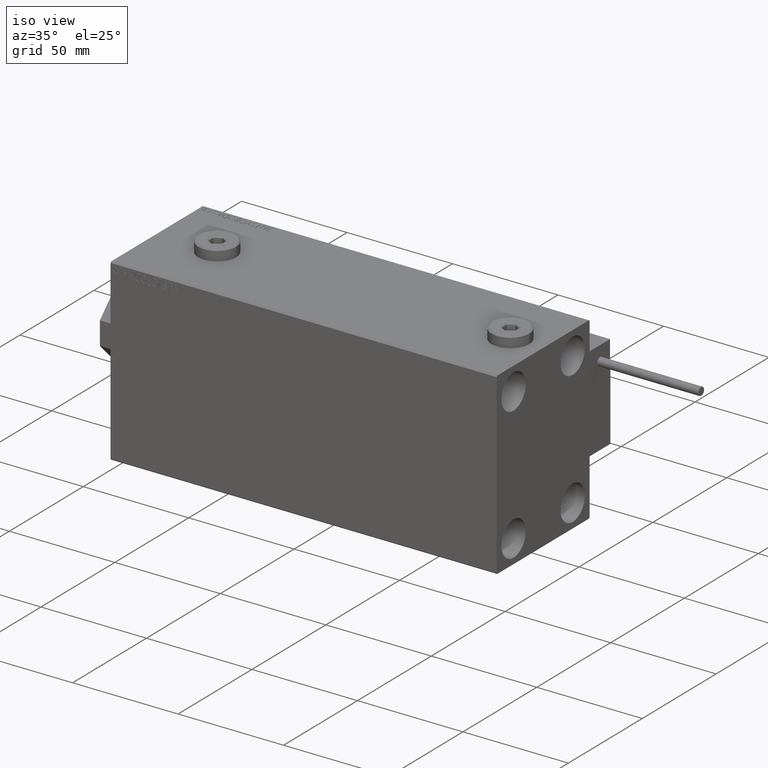
[diagram: clean part render]
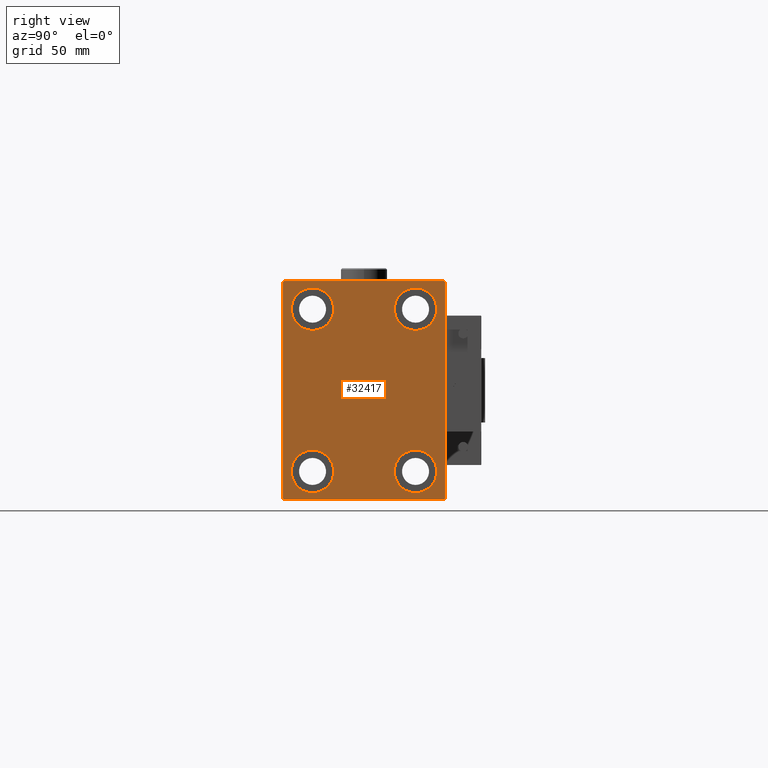
[diagram: tour spotlight — one face highlighted and labeled with its STEP entity id]
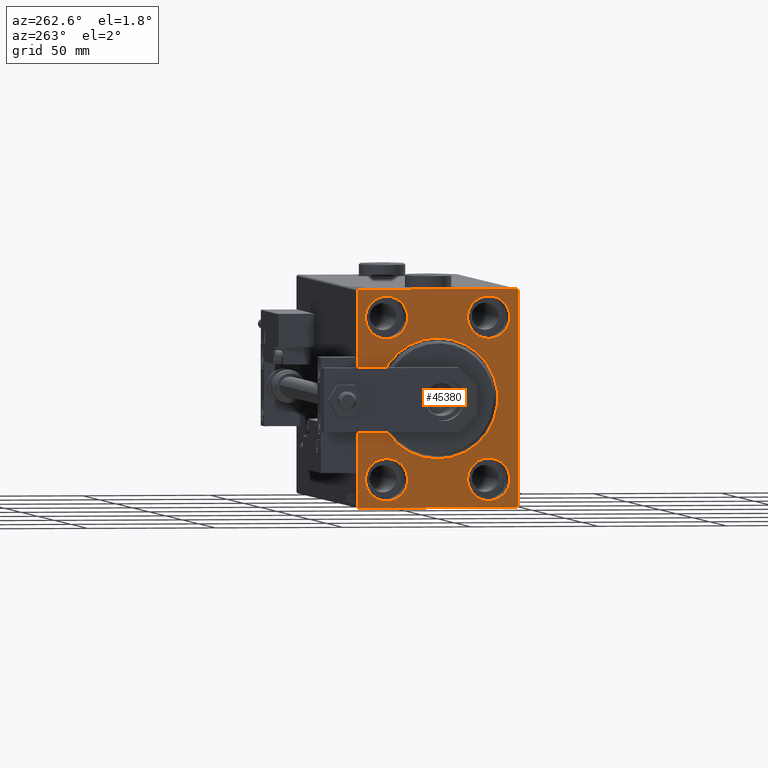
[diagram: tour spotlight — one face highlighted and labeled with its STEP entity id]
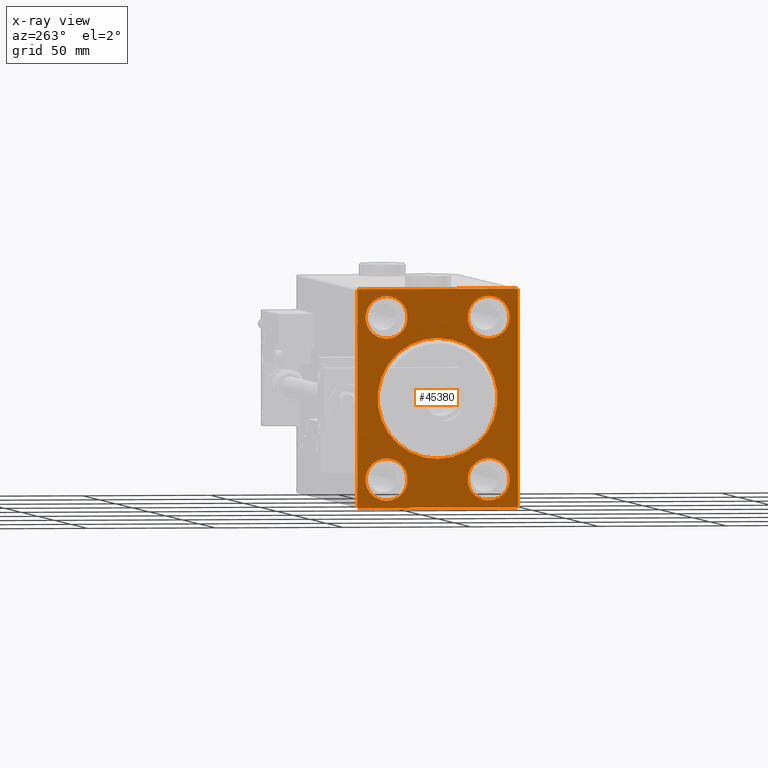
[diagram: x-ray of the same camera — body ghosted, this tour face saturated]
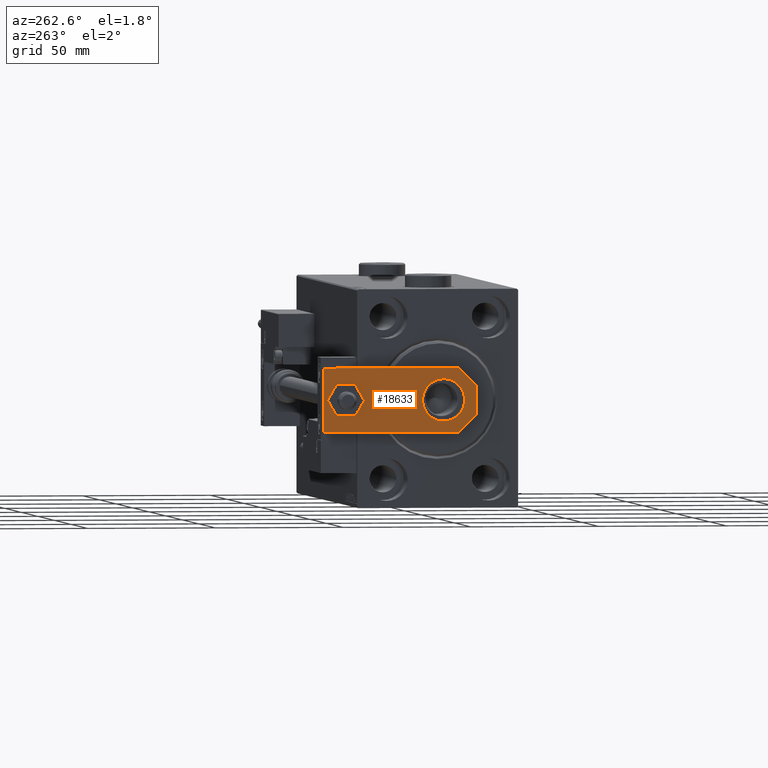
[diagram: tour spotlight — one face highlighted and labeled with its STEP entity id]
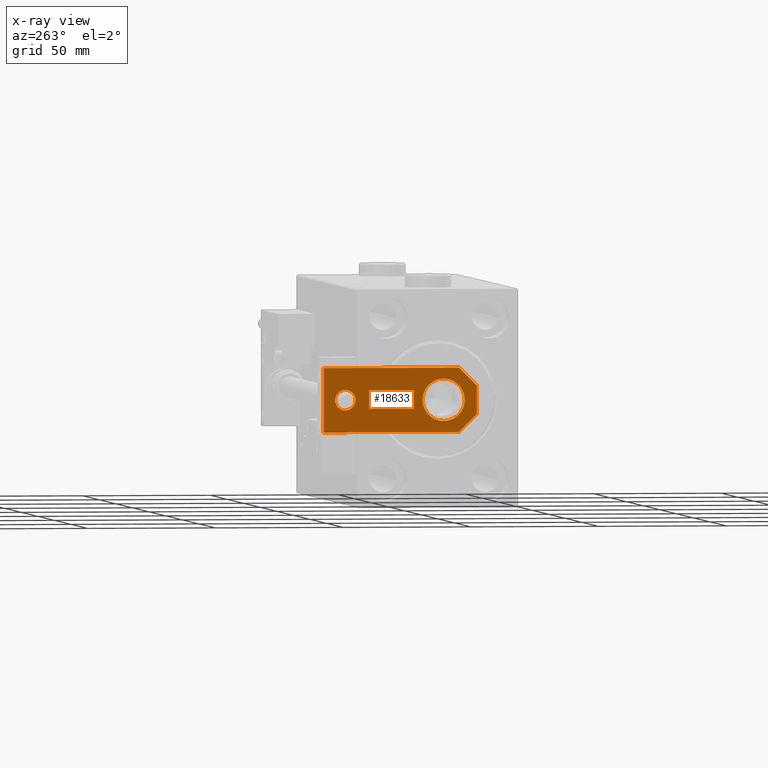
[diagram: x-ray of the same camera — body ghosted, this tour face saturated]
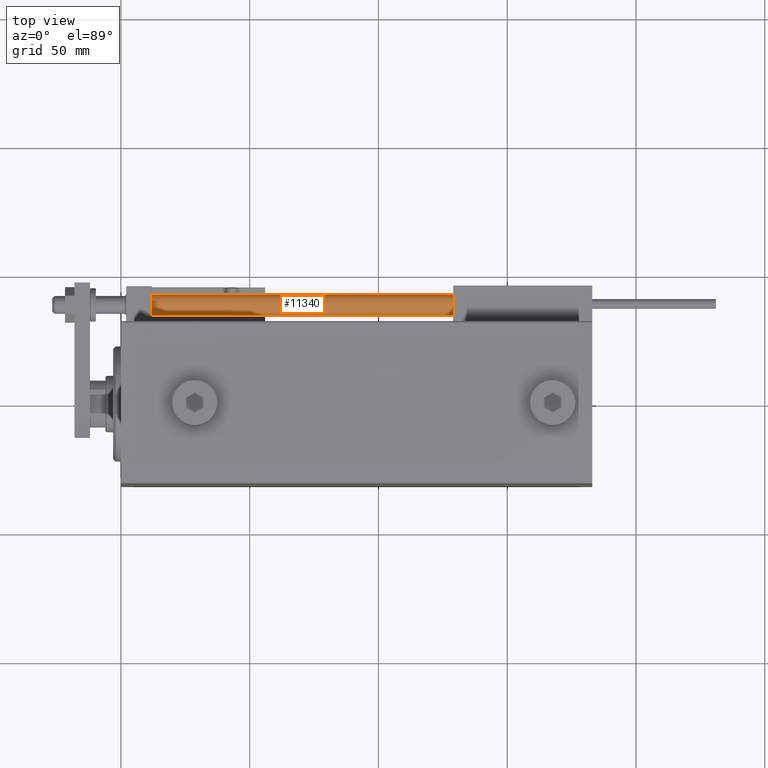
[diagram: tour spotlight — one face highlighted and labeled with its STEP entity id]
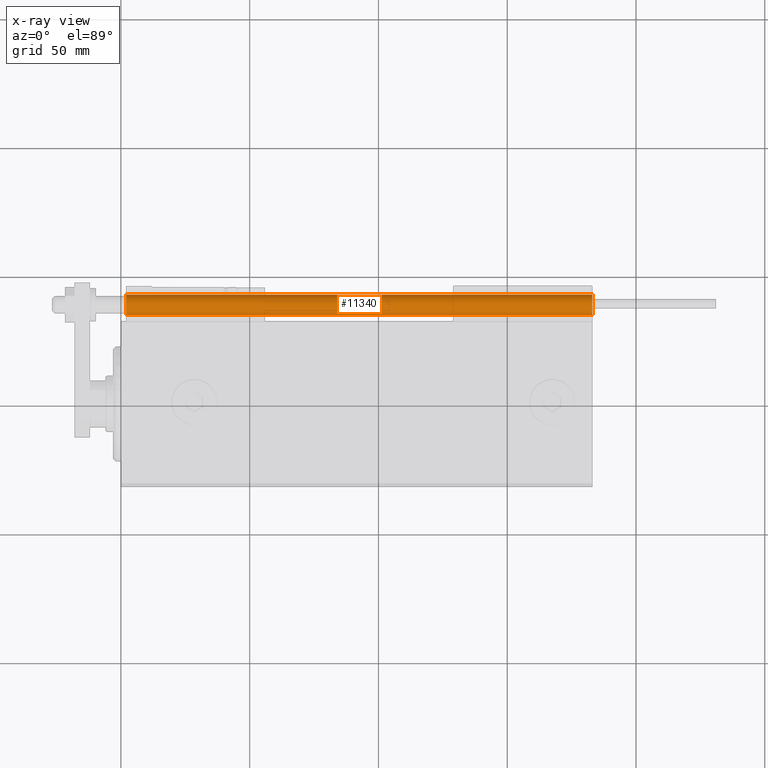
[diagram: x-ray of the same camera — body ghosted, this tour face saturated]
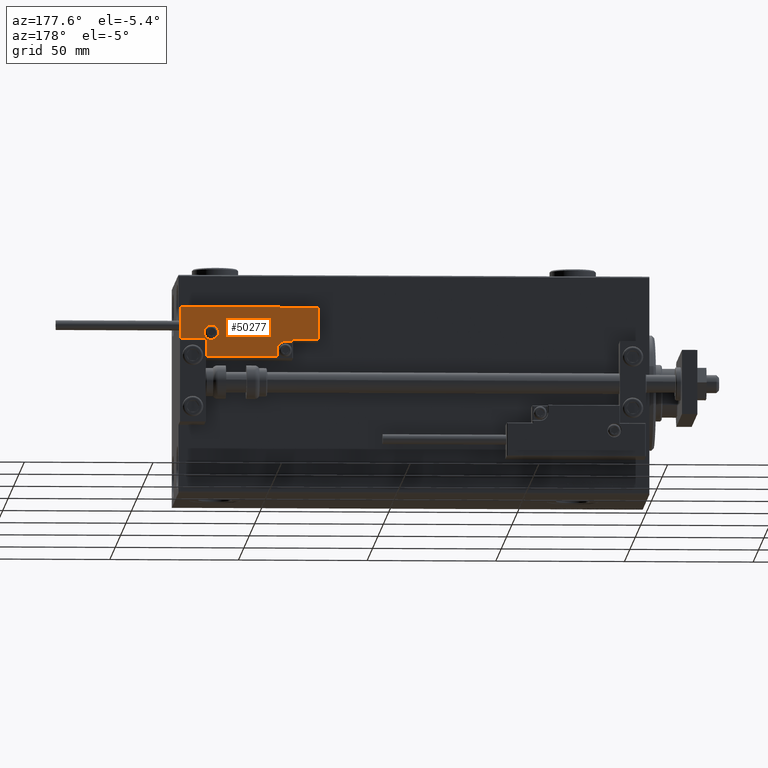
[diagram: tour spotlight — one face highlighted and labeled with its STEP entity id]
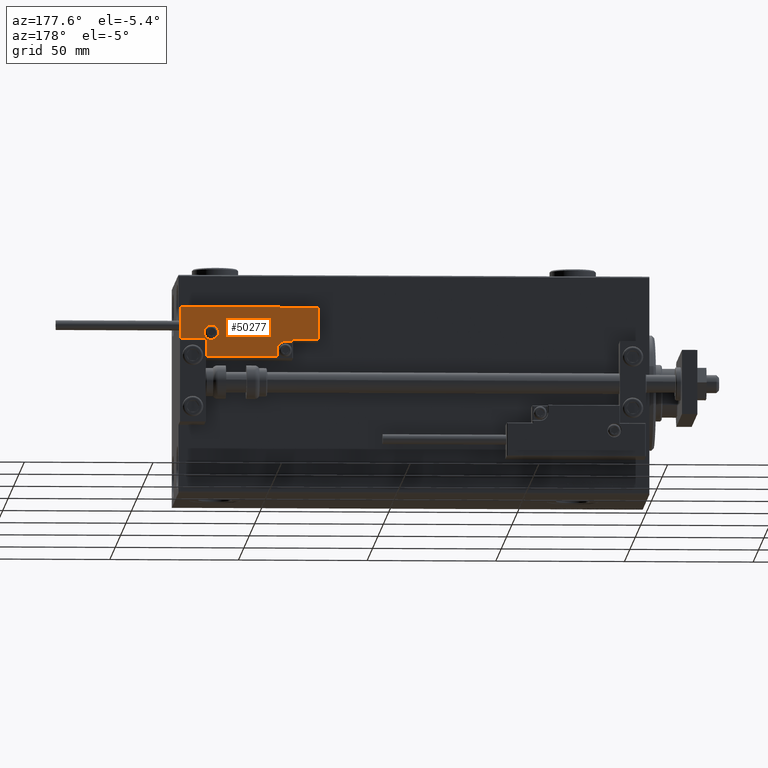
[diagram: tour spotlight — one face highlighted and labeled with its STEP entity id]
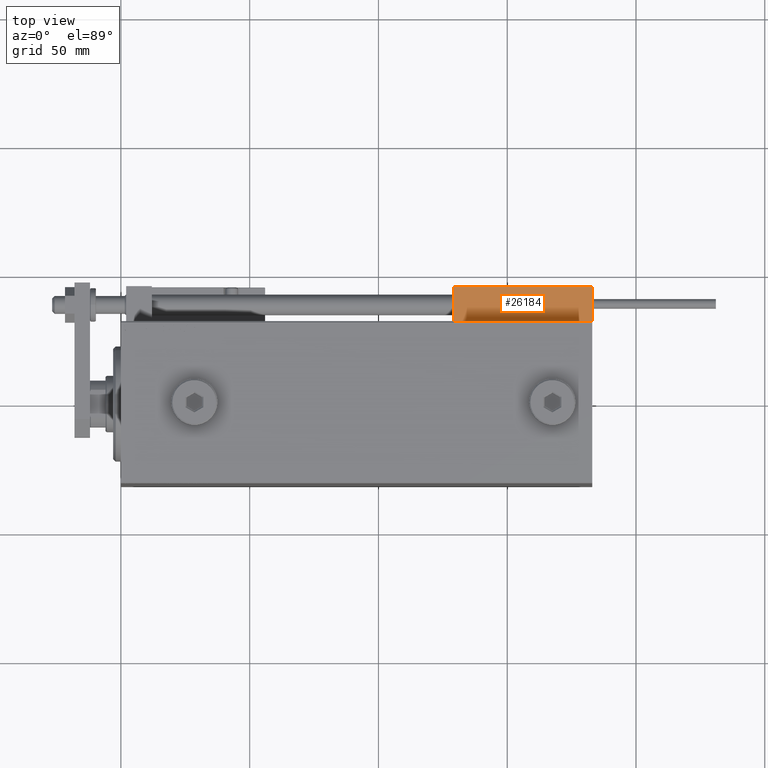
[diagram: tour spotlight — one face highlighted and labeled with its STEP entity id]
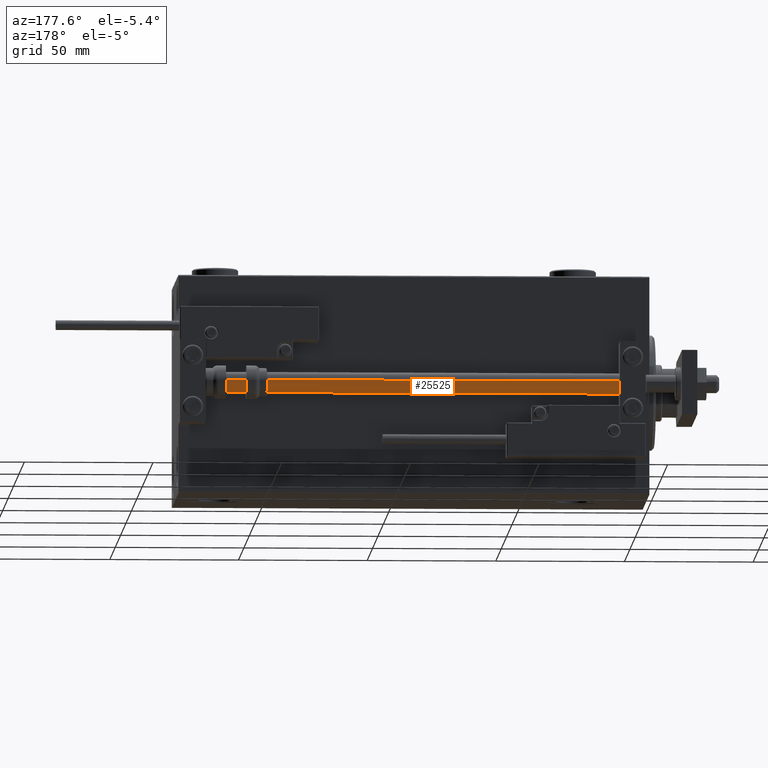
[diagram: tour spotlight — one face highlighted and labeled with its STEP entity id]
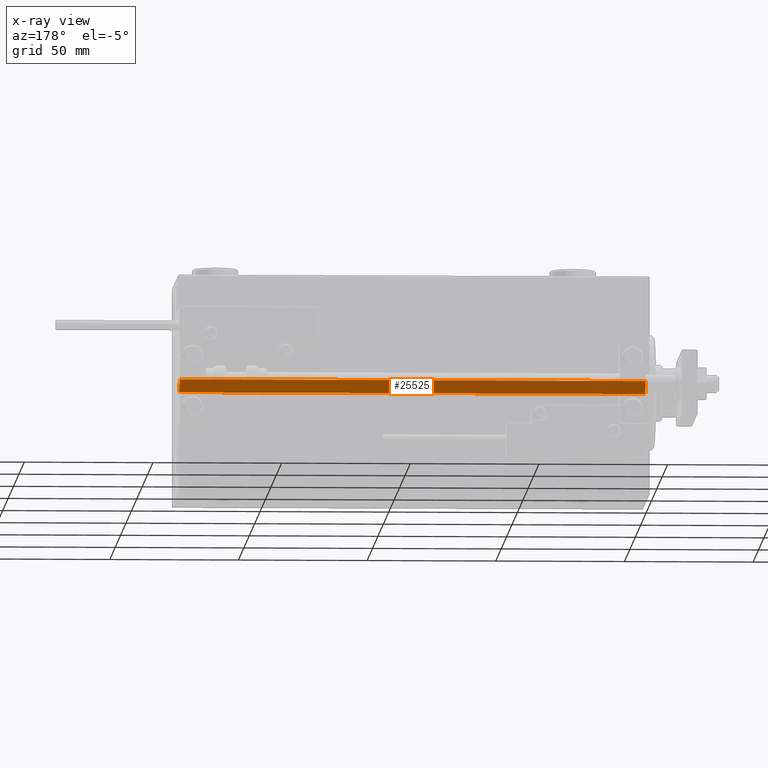
[diagram: x-ray of the same camera — body ghosted, this tour face saturated]
A machine part: a face-by-face anatomy tour. The part has 1336 B-rep faces; the first image is the clean iso view, then the 8 largest visible faces are spotlighted one at a time (largest first), each with its STEP entity span.

Face 1 — right view, entity #32417. In plain terms, the highlighted planar face has unit normal (1, 0, 0).
Definition (entity closure, byte-faithful):
#712 = CARTESIAN_POINT ( 'NONE',  ( 183.0000000000000000, 20.00000000000000355, 39.74999999999999289 ) ) ;
#738 = DIRECTION ( 'NONE',  ( -1.000000000000000000, -0.000000000000000000, -0.000000000000000000 ) ) ;
#824 = CARTESIAN_POINT ( 'NONE',  ( 183.0000000000000000, -31.50000000000000000, 42.49999999999999289 ) ) ;
#1260 = DIRECTION ( 'NONE',  ( 0.000000000000000000, 0.000000000000000000, 1.000000000000000000 ) ) ;
#1737 = LINE ( 'NONE', #45500, #18357 ) ;
#2892 = FACE_BOUND ( 'NONE', #44567, .T. ) ;
#3693 = DIRECTION ( 'NONE',  ( 0.000000000000000000, 0.000000000000000000, 1.000000000000000000 ) ) ;
#4081 = CARTESIAN_POINT ( 'NONE',  ( 183.0000000000000000, -20.00000000000000355, -31.49999999999999289 ) ) ;
#4135 = VECTOR ( 'NONE', #38718, 1000.000000000000000 ) ;
#4296 = DIRECTION ( 'NONE',  ( 0.000000000000000000, 0.000000000000000000, 1.000000000000000000 ) ) ;
#4483 = VECTOR ( 'NONE', #11799, 1000.000000000000000 ) ;
#4557 = VERTEX_POINT ( 'NONE', #13978 ) ;
#4566 = ORIENTED_EDGE ( 'NONE', *, *, #51063, .T. ) ;
#4607 = VERTEX_POINT ( 'NONE', #34020 ) ;
#4817 = DIRECTION ( 'NONE',  ( 0.000000000000000000, 0.000000000000000000, 1.000000000000000000 ) ) ;
#5517 = AXIS2_PLACEMENT_3D ( 'NONE', #18125, #34261, #34009 ) ;
#5529 = AXIS2_PLACEMENT_3D ( 'NONE', #48087, #48334, #49099 ) ;
#5736 = EDGE_LOOP ( 'NONE', ( #27668, #4566 ) ) ;
#6553 = DIRECTION ( 'NONE',  ( 1.000000000000000000, 0.000000000000000000, 0.000000000000000000 ) ) ;
#6811 = FACE_OUTER_BOUND ( 'NONE', #51519, .T. ) ;
#6938 = ORIENTED_EDGE ( 'NONE', *, *, #36990, .T. ) ;
#7239 = VERTEX_POINT ( 'NONE', #11542 ) ;
#7595 = DIRECTION ( 'NONE',  ( 0.000000000000000000, -0.7071067811865474617, -0.7071067811865474617 ) ) ;
#7601 = DIRECTION ( 'NONE',  ( -1.000000000000000000, -0.000000000000000000, -0.000000000000000000 ) ) ;
#9210 = CIRCLE ( 'NONE', #13387, 8.249999999999992895 ) ;
#9522 = ORIENTED_EDGE ( 'NONE', *, *, #36056, .T. ) ;
#10203 = FACE_BOUND ( 'NONE', #5736, .T. ) ;
#10943 = EDGE_CURVE ( 'NONE', #45701, #4607, #29668, .T. ) ;
#11047 = CARTESIAN_POINT ( 'NONE',  ( 183.0000000000000000, -36.75000000000000711, -36.75000000000000711 ) ) ;
#11542 = CARTESIAN_POINT ( 'NONE',  ( 183.0000000000000000, -19.99999999999999645, 23.25000000000000355 ) ) ;
#11799 = DIRECTION ( 'NONE',  ( 0.000000000000000000, 0.000000000000000000, -1.000000000000000000 ) ) ;
#11992 = CIRCLE ( 'NONE', #26104, 8.250000000000000000 ) ;
#12060 = LINE ( 'NONE', #824, #4483 ) ;
#12643 = DIRECTION ( 'NONE',  ( -1.000000000000000000, -0.000000000000000000, -0.000000000000000000 ) ) ;
#12996 = CARTESIAN_POINT ( 'NONE',  ( 183.0000000000000000, 19.99999999999999645, -31.49999999999999289 ) ) ;
#13387 = AXIS2_PLACEMENT_3D ( 'NONE', #20973, #12643, #4817 ) ;
#13978 = CARTESIAN_POINT ( 'NONE',  ( 183.0000000000000000, 20.00000000000000355, 23.25000000000000355 ) ) ;
#14676 = CIRCLE ( 'NONE', #5529, 8.249999999999992895 ) ;
#14766 = LINE ( 'NONE', #30401, #4135 ) ;
#14770 = CARTESIAN_POINT ( 'NONE',  ( 183.0000000000000000, 36.75000000000002132, 36.75000000000002132 ) ) ;
#15820 = DIRECTION ( 'NONE',  ( -1.000000000000000000, -0.000000000000000000, -0.000000000000000000 ) ) ;
#15927 = AXIS2_PLACEMENT_3D ( 'NONE', #18553, #7601, #3693 ) ;
#16524 = ORIENTED_EDGE ( 'NONE', *, *, #42871, .T. ) ;
#16774 = ORIENTED_EDGE ( 'NONE', *, *, #41184, .T. ) ;
#16884 = VECTOR ( 'NONE', #34481, 1000.000000000000114 ) ;
#17062 = CARTESIAN_POINT ( 'NONE',  ( 183.0000000000000000, -31.50000000000000000, -42.00000000000000711 ) ) ;
#18125 = CARTESIAN_POINT ( 'NONE',  ( 183.0000000000000000, 19.99999999999999645, -31.49999999999999289 ) ) ;
#18219 = AXIS2_PLACEMENT_3D ( 'NONE', #36590, #28276, #4296 ) ;
#18357 = VECTOR ( 'NONE', #44484, 1000.000000000000000 ) ;
#18549 = VECTOR ( 'NONE', #7595, 1000.000000000000114 ) ;
#18553 = CARTESIAN_POINT ( 'NONE',  ( 183.0000000000000000, -20.00000000000000355, -31.49999999999999289 ) ) ;
#19724 = CARTESIAN_POINT ( 'NONE',  ( 183.0000000000000000, -30.99999999999997158, 42.49999999999999289 ) ) ;
#19787 = CARTESIAN_POINT ( 'NONE',  ( 183.0000000000000000, -20.00000000000000355, -23.24999999999999289 ) ) ;
#20094 = VERTEX_POINT ( 'NONE', #49032 ) ;
#20558 = EDGE_CURVE ( 'NONE', #7239, #20094, #48996, .T. ) ;
#20563 = VERTEX_POINT ( 'NONE', #17062 ) ;
#20973 = CARTESIAN_POINT ( 'NONE',  ( 183.0000000000000000, 20.00000000000000355, 31.50000000000000000 ) ) ;
#21185 = VERTEX_POINT ( 'NONE', #32576 ) ;
#22617 = VERTEX_POINT ( 'NONE', #34042 ) ;
#23125 = EDGE_CURVE ( 'NONE', #42800, #26759, #14766, .T. ) ;
#23748 = CARTESIAN_POINT ( 'NONE',  ( 183.0000000000000000, -36.74999999999997868, 36.74999999999997868 ) ) ;
#24325 = DIRECTION ( 'NONE',  ( 0.000000000000000000, -1.632680918566406300E-16, 1.000000000000000000 ) ) ;
#24346 = EDGE_CURVE ( 'NONE', #50320, #26748, #24574, .T. ) ;
#24480 = ORIENTED_EDGE ( 'NONE', *, *, #20558, .T. ) ;
#24574 = LINE ( 'NONE', #39950, #28313 ) ;
#24782 = ORIENTED_EDGE ( 'NONE', *, *, #29436, .T. ) ;
#25581 = EDGE_CURVE ( 'NONE', #22617, #26434, #37486, .T. ) ;
#25906 = CARTESIAN_POINT ( 'NONE',  ( 183.0000000000000000, 31.00000000000002842, 42.50000000000000711 ) ) ;
#26104 = AXIS2_PLACEMENT_3D ( 'NONE', #12996, #738, #40859 ) ;
#26107 = VERTEX_POINT ( 'NONE', #38403 ) ;
#26434 = VERTEX_POINT ( 'NONE', #19787 ) ;
#26540 = EDGE_CURVE ( 'NONE', #20094, #7239, #40879, .T. ) ;
#26748 = VERTEX_POINT ( 'NONE', #43425 ) ;
#26759 = VERTEX_POINT ( 'NONE', #19724 ) ;
#26883 = FACE_BOUND ( 'NONE', #41395, .T. ) ;
#26950 = LINE ( 'NONE', #11047, #16884 ) ;
#27549 = DIRECTION ( 'NONE',  ( 0.000000000000000000, 0.000000000000000000, 1.000000000000000000 ) ) ;
#27668 = ORIENTED_EDGE ( 'NONE', *, *, #29653, .T. ) ;
#27924 = LINE ( 'NONE', #23748, #18549 ) ;
#28276 = DIRECTION ( 'NONE',  ( -1.000000000000000000, -0.000000000000000000, -0.000000000000000000 ) ) ;
#28313 = VECTOR ( 'NONE', #24325, 1000.000000000000000 ) ;
#29149 = CARTESIAN_POINT ( 'NONE',  ( 183.0000000000000000, -19.99999999999999645, 31.50000000000000000 ) ) ;
#29165 = ORIENTED_EDGE ( 'NONE', *, *, #24346, .T. ) ;
#29247 = VERTEX_POINT ( 'NONE', #712 ) ;
#29436 = EDGE_CURVE ( 'NONE', #47369, #21185, #1737, .T. ) ;
#29653 = EDGE_CURVE ( 'NONE', #4557, #29247, #9210, .T. ) ;
#29663 = DIRECTION ( 'NONE',  ( -1.000000000000000000, -0.000000000000000000, -0.000000000000000000 ) ) ;
#29668 = CIRCLE ( 'NONE', #5517, 8.250000000000000000 ) ;
#30401 = CARTESIAN_POINT ( 'NONE',  ( 183.0000000000000000, 31.50000000000000000, 42.50000000000000711 ) ) ;
#30966 = AXIS2_PLACEMENT_3D ( 'NONE', #33911, #6553, #38321 ) ;
#31721 = ORIENTED_EDGE ( 'NONE', *, *, #34437, .T. ) ;
#31763 = CARTESIAN_POINT ( 'NONE',  ( 183.0000000000000000, -31.00000000000000000, -42.50000000000000711 ) ) ;
#32417 = ADVANCED_FACE ( 'NONE', ( #2892, #50322, #10203, #26883, #6811 ), #45883, .T. ) ;
#32576 = CARTESIAN_POINT ( 'NONE',  ( 183.0000000000000000, 31.00000000000001421, -42.50000000000000711 ) ) ;
#33911 = CARTESIAN_POINT ( 'NONE',  ( 183.0000000000000000, 0.000000000000000000, 0.000000000000000000 ) ) ;
#34009 = DIRECTION ( 'NONE',  ( 0.000000000000000000, 0.000000000000000000, 1.000000000000000000 ) ) ;
#34020 = CARTESIAN_POINT ( 'NONE',  ( 183.0000000000000000, 19.99999999999999645, -39.74999999999999289 ) ) ;
#34042 = CARTESIAN_POINT ( 'NONE',  ( 183.0000000000000000, -20.00000000000000355, -39.74999999999999289 ) ) ;
#34207 = CARTESIAN_POINT ( 'NONE',  ( 183.0000000000000000, 31.50000000000001421, -42.00000000000000711 ) ) ;
#34261 = DIRECTION ( 'NONE',  ( -1.000000000000000000, -0.000000000000000000, -0.000000000000000000 ) ) ;
#34437 = EDGE_CURVE ( 'NONE', #26759, #26107, #27924, .T. ) ;
#34481 = DIRECTION ( 'NONE',  ( -0.000000000000000000, 0.7071067811865474617, -0.7071067811865474617 ) ) ;
#35041 = AXIS2_PLACEMENT_3D ( 'NONE', #29149, #29663, #1260 ) ;
#35507 = CARTESIAN_POINT ( 'NONE',  ( 183.0000000000000000, 19.99999999999999645, -23.24999999999999289 ) ) ;
#35802 = EDGE_CURVE ( 'NONE', #4607, #45701, #11992, .T. ) ;
#36056 = EDGE_CURVE ( 'NONE', #26434, #22617, #47764, .T. ) ;
#36590 = CARTESIAN_POINT ( 'NONE',  ( 183.0000000000000000, -19.99999999999999645, 31.50000000000000000 ) ) ;
#36990 = EDGE_CURVE ( 'NONE', #26748, #42800, #39240, .T. ) ;
#37486 = CIRCLE ( 'NONE', #15927, 8.250000000000000000 ) ;
#38321 = DIRECTION ( 'NONE',  ( 0.000000000000000000, 0.000000000000000000, -1.000000000000000000 ) ) ;
#38403 = CARTESIAN_POINT ( 'NONE',  ( 183.0000000000000000, -31.50000000000000000, 41.99999999999996447 ) ) ;
#38591 = AXIS2_PLACEMENT_3D ( 'NONE', #4081, #15820, #27549 ) ;
#38718 = DIRECTION ( 'NONE',  ( 0.000000000000000000, -1.000000000000000000, -2.202823461557850341E-16 ) ) ;
#39240 = LINE ( 'NONE', #14770, #40947 ) ;
#39383 = EDGE_LOOP ( 'NONE', ( #24480, #47399 ) ) ;
#39950 = CARTESIAN_POINT ( 'NONE',  ( 183.0000000000000000, 31.50000000000001421, -42.50000000000000711 ) ) ;
#40859 = DIRECTION ( 'NONE',  ( 0.000000000000000000, 0.000000000000000000, 1.000000000000000000 ) ) ;
#40879 = CIRCLE ( 'NONE', #35041, 8.249999999999992895 ) ;
#40947 = VECTOR ( 'NONE', #42369, 1000.000000000000114 ) ;
#40978 = VECTOR ( 'NONE', #48382, 1000.000000000000114 ) ;
#41184 = EDGE_CURVE ( 'NONE', #21185, #50320, #41329, .T. ) ;
#41329 = LINE ( 'NONE', #49150, #40978 ) ;
#41395 = EDGE_LOOP ( 'NONE', ( #43245, #9522 ) ) ;
#42369 = DIRECTION ( 'NONE',  ( -0.000000000000000000, -0.7071067811865474617, 0.7071067811865474617 ) ) ;
#42800 = VERTEX_POINT ( 'NONE', #25906 ) ;
#42871 = EDGE_CURVE ( 'NONE', #20563, #47369, #26950, .T. ) ;
#43245 = ORIENTED_EDGE ( 'NONE', *, *, #25581, .T. ) ;
#43425 = CARTESIAN_POINT ( 'NONE',  ( 183.0000000000000000, 31.50000000000000000, 42.00000000000003553 ) ) ;
#44484 = DIRECTION ( 'NONE',  ( 0.000000000000000000, 1.000000000000000000, 0.000000000000000000 ) ) ;
#44567 = EDGE_LOOP ( 'NONE', ( #50761, #49458 ) ) ;
#45500 = CARTESIAN_POINT ( 'NONE',  ( 183.0000000000000000, -31.50000000000000000, -42.50000000000000711 ) ) ;
#45638 = EDGE_CURVE ( 'NONE', #26107, #20563, #12060, .T. ) ;
#45701 = VERTEX_POINT ( 'NONE', #35507 ) ;
#45883 = PLANE ( 'NONE',  #30966 ) ;
#47369 = VERTEX_POINT ( 'NONE', #31763 ) ;
#47399 = ORIENTED_EDGE ( 'NONE', *, *, #26540, .T. ) ;
#47764 = CIRCLE ( 'NONE', #38591, 8.250000000000000000 ) ;
#48087 = CARTESIAN_POINT ( 'NONE',  ( 183.0000000000000000, 20.00000000000000355, 31.50000000000000000 ) ) ;
#48334 = DIRECTION ( 'NONE',  ( -1.000000000000000000, -0.000000000000000000, -0.000000000000000000 ) ) ;
#48382 = DIRECTION ( 'NONE',  ( -0.000000000000000000, 0.7071067811865474617, 0.7071067811865474617 ) ) ;
#48953 = ORIENTED_EDGE ( 'NONE', *, *, #45638, .T. ) ;
#48996 = CIRCLE ( 'NONE', #18219, 8.249999999999992895 ) ;
#49032 = CARTESIAN_POINT ( 'NONE',  ( 183.0000000000000000, -19.99999999999999645, 39.74999999999999289 ) ) ;
#49099 = DIRECTION ( 'NONE',  ( 0.000000000000000000, 0.000000000000000000, 1.000000000000000000 ) ) ;
#49150 = CARTESIAN_POINT ( 'NONE',  ( 183.0000000000000000, 36.75000000000001421, -36.75000000000001421 ) ) ;
#49458 = ORIENTED_EDGE ( 'NONE', *, *, #10943, .T. ) ;
#50024 = ORIENTED_EDGE ( 'NONE', *, *, #23125, .T. ) ;
#50320 = VERTEX_POINT ( 'NONE', #34207 ) ;
#50322 = FACE_BOUND ( 'NONE', #39383, .T. ) ;
#50761 = ORIENTED_EDGE ( 'NONE', *, *, #35802, .T. ) ;
#51063 = EDGE_CURVE ( 'NONE', #29247, #4557, #14676, .T. ) ;
#51519 = EDGE_LOOP ( 'NONE', ( #50024, #31721, #48953, #16524, #24782, #16774, #29165, #6938 ) ) ;

Face 2 — auxiliary view, entity #45380. An x-ray twin of the same camera follows (body ghosted, this face saturated) — the face is partly hidden behind the body. In plain terms, the highlighted planar face has unit normal (1, 0, 0).
Definition (entity closure, byte-faithful):
#419 = EDGE_CURVE ( 'NONE', #42461, #8633, #50965, .T. ) ;
#704 = LINE ( 'NONE', #16604, #27008 ) ;
#1022 = CARTESIAN_POINT ( 'NONE',  ( 0.000000000000000000, -20.00000000000000355, -23.24999999999999289 ) ) ;
#1254 = VECTOR ( 'NONE', #24473, 1000.000000000000000 ) ;
#1529 = EDGE_CURVE ( 'NONE', #44323, #43795, #8549, .T. ) ;
#1687 = DIRECTION ( 'NONE',  ( 0.000000000000000000, 0.000000000000000000, 1.000000000000000000 ) ) ;
#2110 = AXIS2_PLACEMENT_3D ( 'NONE', #33883, #49787, #31291 ) ;
#2236 = CIRCLE ( 'NONE', #15576, 8.249999999999992895 ) ;
#2337 = ORIENTED_EDGE ( 'NONE', *, *, #28087, .T. ) ;
#2339 = DIRECTION ( 'NONE',  ( -0.000000000000000000, 0.7071067811865474617, 0.7071067811865474617 ) ) ;
#2560 = FACE_BOUND ( 'NONE', #38681, .T. ) ;
#2580 = EDGE_CURVE ( 'NONE', #17092, #45848, #9552, .T. ) ;
#2848 = EDGE_LOOP ( 'NONE', ( #24590, #36757 ) ) ;
#3067 = CARTESIAN_POINT ( 'NONE',  ( 0.000000000000000000, 20.00000000000000355, 31.50000000000000000 ) ) ;
#4116 = ORIENTED_EDGE ( 'NONE', *, *, #8875, .T. ) ;
#4193 = AXIS2_PLACEMENT_3D ( 'NONE', #27905, #12267, #43782 ) ;
#4364 = LINE ( 'NONE', #47895, #8654 ) ;
#4409 = EDGE_CURVE ( 'NONE', #26770, #8253, #4364, .T. ) ;
#4478 = CARTESIAN_POINT ( 'NONE',  ( 0.000000000000000000, 31.50000000000000000, 42.00000000000003553 ) ) ;
#4698 = CIRCLE ( 'NONE', #26307, 8.250000000000000000 ) ;
#4876 = LINE ( 'NONE', #28092, #7124 ) ;
#5390 = DIRECTION ( 'NONE',  ( 0.000000000000000000, 0.000000000000000000, -1.000000000000000000 ) ) ;
#5564 = CARTESIAN_POINT ( 'NONE',  ( 0.000000000000000000, 0.000000000000000000, 0.000000000000000000 ) ) ;
#6150 = DIRECTION ( 'NONE',  ( 0.000000000000000000, 0.000000000000000000, 1.000000000000000000 ) ) ;
#6458 = EDGE_CURVE ( 'NONE', #14801, #27034, #8567, .T. ) ;
#6892 = CARTESIAN_POINT ( 'NONE',  ( 0.000000000000000000, 31.00000000000002842, 42.50000000000000711 ) ) ;
#6908 = AXIS2_PLACEMENT_3D ( 'NONE', #10020, #10531, #1687 ) ;
#7124 = VECTOR ( 'NONE', #39801, 1000.000000000000114 ) ;
#7481 = EDGE_CURVE ( 'NONE', #51243, #9261, #28747, .T. ) ;
#7576 = CARTESIAN_POINT ( 'NONE',  ( 0.000000000000000000, -19.99999999999999645, 23.25000000000000355 ) ) ;
#8253 = VERTEX_POINT ( 'NONE', #4478 ) ;
#8522 = ORIENTED_EDGE ( 'NONE', *, *, #42478, .F. ) ;
#8549 = CIRCLE ( 'NONE', #49314, 8.250000000000000000 ) ;
#8567 = LINE ( 'NONE', #24731, #1254 ) ;
#8633 = VERTEX_POINT ( 'NONE', #1022 ) ;
#8654 = VECTOR ( 'NONE', #28096, 1000.000000000000000 ) ;
#8875 = EDGE_CURVE ( 'NONE', #26770, #22041, #4876, .T. ) ;
#9261 = VERTEX_POINT ( 'NONE', #25930 ) ;
#9552 = LINE ( 'NONE', #44742, #20233 ) ;
#9857 = ORIENTED_EDGE ( 'NONE', *, *, #18096, .F. ) ;
#9882 = PLANE ( 'NONE',  #29495 ) ;
#10020 = CARTESIAN_POINT ( 'NONE',  ( 0.000000000000000000, -19.99999999999999645, 31.50000000000000000 ) ) ;
#10531 = DIRECTION ( 'NONE',  ( -1.000000000000000000, 0.000000000000000000, 0.000000000000000000 ) ) ;
#11296 = EDGE_CURVE ( 'NONE', #43795, #44323, #4698, .T. ) ;
#12213 = EDGE_CURVE ( 'NONE', #9261, #51243, #2236, .T. ) ;
#12267 = DIRECTION ( 'NONE',  ( -1.000000000000000000, 0.000000000000000000, 0.000000000000000000 ) ) ;
#13180 = EDGE_CURVE ( 'NONE', #14801, #8253, #34334, .T. ) ;
#13442 = VERTEX_POINT ( 'NONE', #49915 ) ;
#13694 = ORIENTED_EDGE ( 'NONE', *, *, #35512, .T. ) ;
#13965 = DIRECTION ( 'NONE',  ( -1.000000000000000000, 0.000000000000000000, 0.000000000000000000 ) ) ;
#14240 = ORIENTED_EDGE ( 'NONE', *, *, #40309, .T. ) ;
#14701 = CARTESIAN_POINT ( 'NONE',  ( 0.000000000000000000, 19.99999999999999645, -39.74999999999999289 ) ) ;
#14785 = AXIS2_PLACEMENT_3D ( 'NONE', #49656, #13965, #34258 ) ;
#14801 = VERTEX_POINT ( 'NONE', #6892 ) ;
#15331 = ORIENTED_EDGE ( 'NONE', *, *, #12213, .F. ) ;
#15576 = AXIS2_PLACEMENT_3D ( 'NONE', #3067, #43439, #18975 ) ;
#16587 = EDGE_LOOP ( 'NONE', ( #38150, #48684 ) ) ;
#16604 = CARTESIAN_POINT ( 'NONE',  ( 0.000000000000000000, -31.00000000000000000, -42.50000000000000711 ) ) ;
#16960 = VECTOR ( 'NONE', #2339, 1000.000000000000114 ) ;
#17092 = VERTEX_POINT ( 'NONE', #43771 ) ;
#17637 = CARTESIAN_POINT ( 'NONE',  ( 0.000000000000000000, -31.50000000000000000, -42.50000000000000711 ) ) ;
#17875 = CARTESIAN_POINT ( 'NONE',  ( 0.000000000000000000, 19.99999999999999645, -31.49999999999999289 ) ) ;
#17953 = FACE_OUTER_BOUND ( 'NONE', #22340, .T. ) ;
#18096 = EDGE_CURVE ( 'NONE', #8633, #42461, #39726, .T. ) ;
#18323 = CIRCLE ( 'NONE', #25845, 23.49999999999996092 ) ;
#18641 = DIRECTION ( 'NONE',  ( 0.000000000000000000, 0.000000000000000000, 1.000000000000000000 ) ) ;
#18752 = LINE ( 'NONE', #22932, #16960 ) ;
#18975 = DIRECTION ( 'NONE',  ( 0.000000000000000000, 0.000000000000000000, 1.000000000000000000 ) ) ;
#19576 = CARTESIAN_POINT ( 'NONE',  ( 0.000000000000000000, 2.877919977996275587E-15, -23.49999999999996092 ) ) ;
#19676 = CARTESIAN_POINT ( 'NONE',  ( 0.000000000000000000, -20.00000000000000355, -31.49999999999999289 ) ) ;
#19968 = EDGE_LOOP ( 'NONE', ( #2337, #14240 ) ) ;
#20153 = AXIS2_PLACEMENT_3D ( 'NONE', #19676, #47552, #18641 ) ;
#20233 = VECTOR ( 'NONE', #5390, 1000.000000000000000 ) ;
#21211 = DIRECTION ( 'NONE',  ( 0.000000000000000000, 0.000000000000000000, -1.000000000000000000 ) ) ;
#21808 = ORIENTED_EDGE ( 'NONE', *, *, #6458, .F. ) ;
#21810 = LINE ( 'NONE', #17637, #22733 ) ;
#21861 = DIRECTION ( 'NONE',  ( -0.000000000000000000, 0.7071067811865474617, -0.7071067811865474617 ) ) ;
#22041 = VERTEX_POINT ( 'NONE', #46945 ) ;
#22340 = EDGE_LOOP ( 'NONE', ( #42398, #13694, #21808, #51205, #40597, #4116, #8522, #47624 ) ) ;
#22606 = VERTEX_POINT ( 'NONE', #30417 ) ;
#22733 = VECTOR ( 'NONE', #26480, 1000.000000000000000 ) ;
#22932 = CARTESIAN_POINT ( 'NONE',  ( 0.000000000000000000, -31.50000000000000000, 41.99999999999996447 ) ) ;
#23241 = CARTESIAN_POINT ( 'NONE',  ( 0.000000000000000000, 19.99999999999999645, -23.24999999999999289 ) ) ;
#24473 = DIRECTION ( 'NONE',  ( 0.000000000000000000, -1.000000000000000000, -2.202823461557850341E-16 ) ) ;
#24590 = ORIENTED_EDGE ( 'NONE', *, *, #28816, .F. ) ;
#24731 = CARTESIAN_POINT ( 'NONE',  ( 0.000000000000000000, 31.50000000000000000, 42.50000000000000711 ) ) ;
#25628 = DIRECTION ( 'NONE',  ( 1.000000000000000000, 0.000000000000000000, 0.000000000000000000 ) ) ;
#25715 = CARTESIAN_POINT ( 'NONE',  ( 0.000000000000000000, -20.00000000000000355, -39.74999999999999289 ) ) ;
#25845 = AXIS2_PLACEMENT_3D ( 'NONE', #31105, #34457, #46978 ) ;
#25930 = CARTESIAN_POINT ( 'NONE',  ( 0.000000000000000000, 20.00000000000000355, 23.25000000000000355 ) ) ;
#26307 = AXIS2_PLACEMENT_3D ( 'NONE', #45165, #41009, #30062 ) ;
#26480 = DIRECTION ( 'NONE',  ( 0.000000000000000000, 1.000000000000000000, 0.000000000000000000 ) ) ;
#26770 = VERTEX_POINT ( 'NONE', #36370 ) ;
#27008 = VECTOR ( 'NONE', #48392, 1000.000000000000114 ) ;
#27034 = VERTEX_POINT ( 'NONE', #30623 ) ;
#27905 = CARTESIAN_POINT ( 'NONE',  ( 0.000000000000000000, -19.99999999999999645, 31.50000000000000000 ) ) ;
#28087 = EDGE_CURVE ( 'NONE', #22606, #43214, #18323, .T. ) ;
#28092 = CARTESIAN_POINT ( 'NONE',  ( 0.000000000000000000, 31.50000000000001421, -42.00000000000000711 ) ) ;
#28096 = DIRECTION ( 'NONE',  ( 0.000000000000000000, -1.632680918566406300E-16, 1.000000000000000000 ) ) ;
#28747 = CIRCLE ( 'NONE', #2110, 8.249999999999992895 ) ;
#28816 = EDGE_CURVE ( 'NONE', #46896, #31773, #44949, .T. ) ;
#29386 = CIRCLE ( 'NONE', #6908, 8.249999999999992895 ) ;
#29495 = AXIS2_PLACEMENT_3D ( 'NONE', #34349, #30467, #37999 ) ;
#29620 = DIRECTION ( 'NONE',  ( -1.000000000000000000, 0.000000000000000000, 0.000000000000000000 ) ) ;
#30062 = DIRECTION ( 'NONE',  ( 0.000000000000000000, 0.000000000000000000, 1.000000000000000000 ) ) ;
#30417 = CARTESIAN_POINT ( 'NONE',  ( 0.000000000000000000, 0.000000000000000000, 23.49999999999996092 ) ) ;
#30467 = DIRECTION ( 'NONE',  ( 1.000000000000000000, 0.000000000000000000, 0.000000000000000000 ) ) ;
#30623 = CARTESIAN_POINT ( 'NONE',  ( 0.000000000000000000, -30.99999999999997158, 42.49999999999999289 ) ) ;
#31105 = CARTESIAN_POINT ( 'NONE',  ( 0.000000000000000000, 0.000000000000000000, 0.000000000000000000 ) ) ;
#31291 = DIRECTION ( 'NONE',  ( 0.000000000000000000, 0.000000000000000000, 1.000000000000000000 ) ) ;
#31773 = VERTEX_POINT ( 'NONE', #7576 ) ;
#33460 = CARTESIAN_POINT ( 'NONE',  ( 0.000000000000000000, 20.00000000000000355, 39.74999999999999289 ) ) ;
#33883 = CARTESIAN_POINT ( 'NONE',  ( 0.000000000000000000, 20.00000000000000355, 31.50000000000000000 ) ) ;
#34258 = DIRECTION ( 'NONE',  ( 0.000000000000000000, 0.000000000000000000, 1.000000000000000000 ) ) ;
#34263 = AXIS2_PLACEMENT_3D ( 'NONE', #5564, #25628, #21211 ) ;
#34334 = LINE ( 'NONE', #34601, #38047 ) ;
#34349 = CARTESIAN_POINT ( 'NONE',  ( 0.000000000000000000, 0.000000000000000000, 0.000000000000000000 ) ) ;
#34457 = DIRECTION ( 'NONE',  ( 1.000000000000000000, 0.000000000000000000, 0.000000000000000000 ) ) ;
#34601 = CARTESIAN_POINT ( 'NONE',  ( 0.000000000000000000, 31.00000000000002842, 42.50000000000000711 ) ) ;
#34617 = FACE_BOUND ( 'NONE', #19968, .T. ) ;
#35512 = EDGE_CURVE ( 'NONE', #17092, #27034, #18752, .T. ) ;
#36370 = CARTESIAN_POINT ( 'NONE',  ( 0.000000000000000000, 31.50000000000001421, -42.00000000000000711 ) ) ;
#36757 = ORIENTED_EDGE ( 'NONE', *, *, #43785, .F. ) ;
#37999 = DIRECTION ( 'NONE',  ( 0.000000000000000000, 0.000000000000000000, -1.000000000000000000 ) ) ;
#38047 = VECTOR ( 'NONE', #21861, 1000.000000000000114 ) ;
#38059 = CARTESIAN_POINT ( 'NONE',  ( 0.000000000000000000, -19.99999999999999645, 39.74999999999999289 ) ) ;
#38150 = ORIENTED_EDGE ( 'NONE', *, *, #1529, .F. ) ;
#38681 = EDGE_LOOP ( 'NONE', ( #45717, #15331 ) ) ;
#39726 = CIRCLE ( 'NONE', #14785, 8.250000000000000000 ) ;
#39801 = DIRECTION ( 'NONE',  ( 0.000000000000000000, -0.7071067811865474617, -0.7071067811865474617 ) ) ;
#40309 = EDGE_CURVE ( 'NONE', #43214, #22606, #45910, .T. ) ;
#40597 = ORIENTED_EDGE ( 'NONE', *, *, #4409, .F. ) ;
#41009 = DIRECTION ( 'NONE',  ( -1.000000000000000000, 0.000000000000000000, 0.000000000000000000 ) ) ;
#42398 = ORIENTED_EDGE ( 'NONE', *, *, #2580, .F. ) ;
#42461 = VERTEX_POINT ( 'NONE', #25715 ) ;
#42478 = EDGE_CURVE ( 'NONE', #13442, #22041, #21810, .T. ) ;
#43214 = VERTEX_POINT ( 'NONE', #19576 ) ;
#43439 = DIRECTION ( 'NONE',  ( -1.000000000000000000, 0.000000000000000000, 0.000000000000000000 ) ) ;
#43771 = CARTESIAN_POINT ( 'NONE',  ( 0.000000000000000000, -31.50000000000000000, 41.99999999999996447 ) ) ;
#43782 = DIRECTION ( 'NONE',  ( 0.000000000000000000, 0.000000000000000000, 1.000000000000000000 ) ) ;
#43785 = EDGE_CURVE ( 'NONE', #31773, #46896, #29386, .T. ) ;
#43795 = VERTEX_POINT ( 'NONE', #14701 ) ;
#44323 = VERTEX_POINT ( 'NONE', #23241 ) ;
#44742 = CARTESIAN_POINT ( 'NONE',  ( 0.000000000000000000, -31.50000000000000000, 42.49999999999999289 ) ) ;
#44949 = CIRCLE ( 'NONE', #4193, 8.249999999999992895 ) ;
#45165 = CARTESIAN_POINT ( 'NONE',  ( 0.000000000000000000, 19.99999999999999645, -31.49999999999999289 ) ) ;
#45213 = EDGE_LOOP ( 'NONE', ( #9857, #51210 ) ) ;
#45380 = ADVANCED_FACE ( 'NONE', ( #34617, #49492, #45568, #2560, #46344, #17953 ), #9882, .F. ) ;
#45568 = FACE_BOUND ( 'NONE', #2848, .T. ) ;
#45717 = ORIENTED_EDGE ( 'NONE', *, *, #7481, .F. ) ;
#45848 = VERTEX_POINT ( 'NONE', #46924 ) ;
#45910 = CIRCLE ( 'NONE', #34263, 23.49999999999996092 ) ;
#46344 = FACE_BOUND ( 'NONE', #45213, .T. ) ;
#46539 = EDGE_CURVE ( 'NONE', #13442, #45848, #704, .T. ) ;
#46896 = VERTEX_POINT ( 'NONE', #38059 ) ;
#46924 = CARTESIAN_POINT ( 'NONE',  ( 0.000000000000000000, -31.50000000000000000, -42.00000000000000711 ) ) ;
#46945 = CARTESIAN_POINT ( 'NONE',  ( 0.000000000000000000, 31.00000000000001421, -42.50000000000000711 ) ) ;
#46978 = DIRECTION ( 'NONE',  ( 0.000000000000000000, 0.000000000000000000, -1.000000000000000000 ) ) ;
#47552 = DIRECTION ( 'NONE',  ( -1.000000000000000000, 0.000000000000000000, 0.000000000000000000 ) ) ;
#47624 = ORIENTED_EDGE ( 'NONE', *, *, #46539, .T. ) ;
#47895 = CARTESIAN_POINT ( 'NONE',  ( 0.000000000000000000, 31.50000000000001421, -42.50000000000000711 ) ) ;
#48392 = DIRECTION ( 'NONE',  ( -0.000000000000000000, -0.7071067811865474617, 0.7071067811865474617 ) ) ;
#48684 = ORIENTED_EDGE ( 'NONE', *, *, #11296, .F. ) ;
#49314 = AXIS2_PLACEMENT_3D ( 'NONE', #17875, #29620, #6150 ) ;
#49492 = FACE_BOUND ( 'NONE', #16587, .T. ) ;
#49656 = CARTESIAN_POINT ( 'NONE',  ( 0.000000000000000000, -20.00000000000000355, -31.49999999999999289 ) ) ;
#49787 = DIRECTION ( 'NONE',  ( -1.000000000000000000, 0.000000000000000000, 0.000000000000000000 ) ) ;
#49915 = CARTESIAN_POINT ( 'NONE',  ( 0.000000000000000000, -31.00000000000000000, -42.50000000000000711 ) ) ;
#50965 = CIRCLE ( 'NONE', #20153, 8.250000000000000000 ) ;
#51205 = ORIENTED_EDGE ( 'NONE', *, *, #13180, .T. ) ;
#51210 = ORIENTED_EDGE ( 'NONE', *, *, #419, .F. ) ;
#51243 = VERTEX_POINT ( 'NONE', #33460 ) ;

Face 3 — auxiliary view, entity #18633. An x-ray twin of the same camera follows (body ghosted, this face saturated) — the face is partly hidden behind the body. In plain terms, the highlighted planar face has unit normal (-1, 0, 0).
Definition (entity closure, byte-faithful):
#367 = VERTEX_POINT ( 'NONE', #45994 ) ;
#1611 = LINE ( 'NONE', #36791, #38146 ) ;
#3411 = DIRECTION ( 'NONE',  ( 0.000000000000000000, 0.000000000000000000, 1.000000000000000000 ) ) ;
#3592 = DIRECTION ( 'NONE',  ( 0.000000000000000000, 0.000000000000000000, 1.000000000000000000 ) ) ;
#5169 = VERTEX_POINT ( 'NONE', #16491 ) ;
#5958 = DIRECTION ( 'NONE',  ( -0.000000000000000000, 0.000000000000000000, 1.000000000000000000 ) ) ;
#6254 = CIRCLE ( 'NONE', #31249, 4.000000000000000888 ) ;
#7458 = EDGE_CURVE ( 'NONE', #10147, #50727, #44840, .T. ) ;
#7516 = CARTESIAN_POINT ( 'NONE',  ( 5.499999999999976907, 4.814824860968089633E-32, 6.000000000000000000 ) ) ;
#7583 = DIRECTION ( 'NONE',  ( 1.000000000000000000, 0.000000000000000000, 0.000000000000000000 ) ) ;
#7869 = VECTOR ( 'NONE', #30722, 1000.000000000000000 ) ;
#8189 = ORIENTED_EDGE ( 'NONE', *, *, #43163, .F. ) ;
#8365 = ORIENTED_EDGE ( 'NONE', *, *, #49048, .T. ) ;
#8481 = ORIENTED_EDGE ( 'NONE', *, *, #20994, .T. ) ;
#8548 = VECTOR ( 'NONE', #13410, 1000.000000000000000 ) ;
#8696 = EDGE_CURVE ( 'NONE', #13429, #5169, #6254, .T. ) ;
#9652 = VERTEX_POINT ( 'NONE', #28440 ) ;
#10147 = VERTEX_POINT ( 'NONE', #47100 ) ;
#10900 = PLANE ( 'NONE',  #18110 ) ;
#11086 = AXIS2_PLACEMENT_3D ( 'NONE', #23252, #19334, #18554 ) ;
#11433 = DIRECTION ( 'NONE',  ( 1.000000000000000000, 0.000000000000000000, 0.000000000000000000 ) ) ;
#12188 = VERTEX_POINT ( 'NONE', #31994 ) ;
#13190 = EDGE_CURVE ( 'NONE', #33802, #9652, #23899, .T. ) ;
#13410 = DIRECTION ( 'NONE',  ( -8.673617379884035472E-17, -1.000000000000000000, 0.000000000000000000 ) ) ;
#13429 = VERTEX_POINT ( 'NONE', #18378 ) ;
#15521 = LINE ( 'NONE', #27249, #42041 ) ;
#15843 = CARTESIAN_POINT ( 'NONE',  ( -9.629649721936179265E-32, 12.99999999999999822, 6.000000000000000000 ) ) ;
#16491 = CARTESIAN_POINT ( 'NONE',  ( -4.000000000000000888, 51.50000000000000000, 6.000000000000000000 ) ) ;
#18110 = AXIS2_PLACEMENT_3D ( 'NONE', #45558, #5958, #37990 ) ;
#18378 = CARTESIAN_POINT ( 'NONE',  ( 4.000000000000000888, 51.50000000000000000, 6.000000000000000000 ) ) ;
#18554 = DIRECTION ( 'NONE',  ( 1.000000000000000000, 0.000000000000000000, 0.000000000000000000 ) ) ;
#18633 = ADVANCED_FACE ( 'NONE', ( #29690, #33834, #42166 ), #10900, .T. ) ;
#18990 = CARTESIAN_POINT ( 'NONE',  ( -1.432611055310774642E-16, 51.50000000000000000, 6.000000000000000000 ) ) ;
#18991 = CARTESIAN_POINT ( 'NONE',  ( 12.50000000000000355, 60.00000000000000000, 6.000000000000000000 ) ) ;
#19334 = DIRECTION ( 'NONE',  ( 0.000000000000000000, 0.000000000000000000, 1.000000000000000000 ) ) ;
#20949 = VECTOR ( 'NONE', #32999, 1000.000000000000000 ) ;
#20994 = EDGE_CURVE ( 'NONE', #50727, #29982, #1611, .T. ) ;
#21175 = DIRECTION ( 'NONE',  ( 0.7071067811865486830, 0.7071067811865464625, -0.000000000000000000 ) ) ;
#21402 = CARTESIAN_POINT ( 'NONE',  ( -12.50000000000000355, 4.814824860968089633E-32, 6.000000000000000000 ) ) ;
#21660 = DIRECTION ( 'NONE',  ( 1.000000000000000000, 0.000000000000000000, 0.000000000000000000 ) ) ;
#22090 = ORIENTED_EDGE ( 'NONE', *, *, #35208, .F. ) ;
#23252 = CARTESIAN_POINT ( 'NONE',  ( -1.432611055310774642E-16, 51.50000000000000000, 6.000000000000000000 ) ) ;
#23408 = DIRECTION ( 'NONE',  ( 0.000000000000000000, 0.000000000000000000, 1.000000000000000000 ) ) ;
#23743 = EDGE_LOOP ( 'NONE', ( #22090, #33570 ) ) ;
#23899 = CIRCLE ( 'NONE', #29750, 8.250000000000000000 ) ;
#25147 = CARTESIAN_POINT ( 'NONE',  ( -8.250000000000000000, 12.99999999999999822, 6.000000000000000000 ) ) ;
#26899 = CIRCLE ( 'NONE', #11086, 4.000000000000000888 ) ;
#26939 = EDGE_CURVE ( 'NONE', #29982, #12188, #44707, .T. ) ;
#27249 = CARTESIAN_POINT ( 'NONE',  ( -2.750000000000013767, -2.750000000000005773, 6.000000000000000000 ) ) ;
#28440 = CARTESIAN_POINT ( 'NONE',  ( 8.250000000000000000, 13.00000000000000000, 6.000000000000000000 ) ) ;
#29690 = FACE_BOUND ( 'NONE', #23743, .T. ) ;
#29750 = AXIS2_PLACEMENT_3D ( 'NONE', #15843, #3592, #47625 ) ;
#29982 = VERTEX_POINT ( 'NONE', #34892 ) ;
#30671 = ORIENTED_EDGE ( 'NONE', *, *, #13190, .F. ) ;
#30722 = DIRECTION ( 'NONE',  ( -1.000000000000000000, 0.000000000000000000, 0.000000000000000000 ) ) ;
#31249 = AXIS2_PLACEMENT_3D ( 'NONE', #18990, #23408, #11433 ) ;
#31259 = CARTESIAN_POINT ( 'NONE',  ( -12.50000000000000355, 7.000000000000013323, 6.000000000000000000 ) ) ;
#31994 = CARTESIAN_POINT ( 'NONE',  ( 12.50000000000000355, 60.00000000000000000, 6.000000000000000000 ) ) ;
#32999 = DIRECTION ( 'NONE',  ( 0.000000000000000000, 1.000000000000000000, 0.000000000000000000 ) ) ;
#33570 = ORIENTED_EDGE ( 'NONE', *, *, #8696, .F. ) ;
#33802 = VERTEX_POINT ( 'NONE', #25147 ) ;
#33834 = FACE_OUTER_BOUND ( 'NONE', #45210, .T. ) ;
#34523 = DIRECTION ( 'NONE',  ( 0.7071067811865465735, -0.7071067811865485719, 0.000000000000000000 ) ) ;
#34892 = CARTESIAN_POINT ( 'NONE',  ( 12.50000000000000355, 7.000000000000006217, 6.000000000000000000 ) ) ;
#35208 = EDGE_CURVE ( 'NONE', #5169, #13429, #26899, .T. ) ;
#35604 = ORIENTED_EDGE ( 'NONE', *, *, #26939, .T. ) ;
#36791 = CARTESIAN_POINT ( 'NONE',  ( 2.749999999999980016, -2.749999999999988010, 6.000000000000000000 ) ) ;
#36842 = AXIS2_PLACEMENT_3D ( 'NONE', #39366, #3411, #7583 ) ;
#37146 = CARTESIAN_POINT ( 'NONE',  ( 12.50000000000000355, 4.814824860968089633E-32, 6.000000000000000000 ) ) ;
#37990 = DIRECTION ( 'NONE',  ( 1.000000000000000000, 0.000000000000000000, 0.000000000000000000 ) ) ;
#38146 = VECTOR ( 'NONE', #21175, 999.9999999999998863 ) ;
#39366 = CARTESIAN_POINT ( 'NONE',  ( -9.629649721936179265E-32, 12.99999999999999822, 6.000000000000000000 ) ) ;
#42041 = VECTOR ( 'NONE', #34523, 1000.000000000000000 ) ;
#42166 = FACE_BOUND ( 'NONE', #48807, .T. ) ;
#42681 = LINE ( 'NONE', #18991, #7869 ) ;
#42802 = EDGE_CURVE ( 'NONE', #367, #48182, #45949, .T. ) ;
#42866 = ORIENTED_EDGE ( 'NONE', *, *, #42802, .T. ) ;
#43163 = EDGE_CURVE ( 'NONE', #9652, #33802, #45982, .T. ) ;
#44707 = LINE ( 'NONE', #37146, #20949 ) ;
#44822 = ORIENTED_EDGE ( 'NONE', *, *, #46230, .T. ) ;
#44840 = LINE ( 'NONE', #21402, #45356 ) ;
#45210 = EDGE_LOOP ( 'NONE', ( #42866, #8365, #50189, #8481, #35604, #44822 ) ) ;
#45356 = VECTOR ( 'NONE', #21660, 1000.000000000000000 ) ;
#45440 = CARTESIAN_POINT ( 'NONE',  ( -12.49999999999999822, 60.00000000000000000, 6.000000000000000000 ) ) ;
#45558 = CARTESIAN_POINT ( 'NONE',  ( 0.000000000000000000, 0.000000000000000000, 6.000000000000000000 ) ) ;
#45949 = LINE ( 'NONE', #45440, #8548 ) ;
#45982 = CIRCLE ( 'NONE', #36842, 8.250000000000000000 ) ;
#45994 = CARTESIAN_POINT ( 'NONE',  ( -12.49999999999999822, 60.00000000000000000, 6.000000000000000000 ) ) ;
#46230 = EDGE_CURVE ( 'NONE', #12188, #367, #42681, .T. ) ;
#47100 = CARTESIAN_POINT ( 'NONE',  ( -5.500000000000010658, 4.814824860968089633E-32, 6.000000000000000000 ) ) ;
#47625 = DIRECTION ( 'NONE',  ( 1.000000000000000000, 0.000000000000000000, 0.000000000000000000 ) ) ;
#48182 = VERTEX_POINT ( 'NONE', #31259 ) ;
#48807 = EDGE_LOOP ( 'NONE', ( #30671, #8189 ) ) ;
#49048 = EDGE_CURVE ( 'NONE', #48182, #10147, #15521, .T. ) ;
#50189 = ORIENTED_EDGE ( 'NONE', *, *, #7458, .T. ) ;
#50727 = VERTEX_POINT ( 'NONE', #7516 ) ;

Face 4 — top view, entity #11340. An x-ray twin of the same camera follows (body ghosted, this face saturated) — the face is partly hidden behind the body. In plain terms, the highlighted cylindrical surface (edge-blend (fillet) strip) has radius 4 mm, axis along (-1, 0, 0).
Definition (entity closure, byte-faithful):
#1091 = LINE ( 'NONE', #9680, #9863 ) ;
#1564 = CIRCLE ( 'NONE', #24853, 4.000000000000000000 ) ;
#3376 = ORIENTED_EDGE ( 'NONE', *, *, #20148, .F. ) ;
#4333 = VERTEX_POINT ( 'NONE', #11437 ) ;
#4650 = ORIENTED_EDGE ( 'NONE', *, *, #38274, .T. ) ;
#6336 = FACE_OUTER_BOUND ( 'NONE', #22235, .T. ) ;
#6761 = EDGE_CURVE ( 'NONE', #4333, #8664, #49502, .T. ) ;
#8664 = VERTEX_POINT ( 'NONE', #9873 ) ;
#8678 = LINE ( 'NONE', #47785, #35160 ) ;
#9216 = CYLINDRICAL_SURFACE ( 'NONE', #42105, 4.000000000000000000 ) ;
#9680 = CARTESIAN_POINT ( 'NONE',  ( -4.000000000000000000, 0.000000000000000000, 183.0000000000000000 ) ) ;
#9707 = CARTESIAN_POINT ( 'NONE',  ( 4.000000000000000000, 4.898587196589412829E-16, 2.000000000000029310 ) ) ;
#9863 = VECTOR ( 'NONE', #26285, 1000.000000000000000 ) ;
#9873 = CARTESIAN_POINT ( 'NONE',  ( -4.000000000000000000, 0.000000000000000000, 183.0000000000000000 ) ) ;
#10371 = VERTEX_POINT ( 'NONE', #25307 ) ;
#11340 = ADVANCED_FACE ( 'NONE', ( #6336 ), #9216, .T. ) ;
#11437 = CARTESIAN_POINT ( 'NONE',  ( 4.000000000000000000, 4.898587196589412829E-16, 183.0000000000000000 ) ) ;
#17100 = DIRECTION ( 'NONE',  ( 0.000000000000000000, 0.000000000000000000, 1.000000000000000000 ) ) ;
#20148 = EDGE_CURVE ( 'NONE', #8664, #10371, #1091, .T. ) ;
#20415 = DIRECTION ( 'NONE',  ( -0.000000000000000000, -0.000000000000000000, -1.000000000000000000 ) ) ;
#20500 = DIRECTION ( 'NONE',  ( 1.000000000000000000, 0.000000000000000000, 0.000000000000000000 ) ) ;
#21143 = EDGE_CURVE ( 'NONE', #34239, #10371, #1564, .T. ) ;
#22235 = EDGE_LOOP ( 'NONE', ( #25180, #4650, #43626, #3376 ) ) ;
#22246 = CARTESIAN_POINT ( 'NONE',  ( 0.000000000000000000, 0.000000000000000000, 183.0000000000000000 ) ) ;
#22714 = CARTESIAN_POINT ( 'NONE',  ( 0.000000000000000000, 0.000000000000000000, 2.000000000000029310 ) ) ;
#24853 = AXIS2_PLACEMENT_3D ( 'NONE', #22714, #50055, #38580 ) ;
#25180 = ORIENTED_EDGE ( 'NONE', *, *, #6761, .F. ) ;
#25307 = CARTESIAN_POINT ( 'NONE',  ( -4.000000000000000000, 0.000000000000000000, 2.000000000000029310 ) ) ;
#26285 = DIRECTION ( 'NONE',  ( -0.000000000000000000, -0.000000000000000000, -1.000000000000000000 ) ) ;
#33205 = DIRECTION ( 'NONE',  ( -0.000000000000000000, -0.000000000000000000, -1.000000000000000000 ) ) ;
#34239 = VERTEX_POINT ( 'NONE', #9707 ) ;
#35160 = VECTOR ( 'NONE', #20415, 1000.000000000000000 ) ;
#38113 = DIRECTION ( 'NONE',  ( -1.000000000000000000, 0.000000000000000000, 0.000000000000000000 ) ) ;
#38274 = EDGE_CURVE ( 'NONE', #4333, #34239, #8678, .T. ) ;
#38580 = DIRECTION ( 'NONE',  ( 1.000000000000000000, 0.000000000000000000, 0.000000000000000000 ) ) ;
#39521 = AXIS2_PLACEMENT_3D ( 'NONE', #48368, #17100, #20500 ) ;
#42105 = AXIS2_PLACEMENT_3D ( 'NONE', #22246, #33205, #38113 ) ;
#43626 = ORIENTED_EDGE ( 'NONE', *, *, #21143, .T. ) ;
#47785 = CARTESIAN_POINT ( 'NONE',  ( 4.000000000000000000, 4.898587196589412829E-16, 183.0000000000000000 ) ) ;
#48368 = CARTESIAN_POINT ( 'NONE',  ( 0.000000000000000000, 0.000000000000000000, 183.0000000000000000 ) ) ;
#49502 = CIRCLE ( 'NONE', #39521, 4.000000000000000000 ) ;
#50055 = DIRECTION ( 'NONE',  ( -0.000000000000000000, -0.000000000000000000, 1.000000000000000000 ) ) ;

Face 5 — auxiliary view, entity #50277. In plain terms, the highlighted planar face has unit normal (-0, 1, -0).
Definition (entity closure, byte-faithful):
#84 = LINE ( 'NONE', #27983, #10003 ) ;
#425 = VERTEX_POINT ( 'NONE', #30637 ) ;
#496 = DIRECTION ( 'NONE',  ( 0.000000000000000000, -0.000000000000000000, -1.000000000000000000 ) ) ;
#523 = LINE ( 'NONE', #36986, #48428 ) ;
#1086 = ORIENTED_EDGE ( 'NONE', *, *, #30292, .T. ) ;
#1308 = AXIS2_PLACEMENT_3D ( 'NONE', #32550, #496, #21085 ) ;
#1977 = ORIENTED_EDGE ( 'NONE', *, *, #20426, .T. ) ;
#3160 = DIRECTION ( 'NONE',  ( 1.000000000000000000, 0.000000000000000000, 0.000000000000000000 ) ) ;
#4001 = DIRECTION ( 'NONE',  ( 1.000000000000000000, 5.782411586589357639E-16, -0.000000000000000000 ) ) ;
#4768 = CARTESIAN_POINT ( 'NONE',  ( -16.99999999999999289, 7.300000000000003375, 14.00000000000000000 ) ) ;
#4978 = EDGE_CURVE ( 'NONE', #32045, #34170, #5834, .T. ) ;
#5834 = LINE ( 'NONE', #37608, #30308 ) ;
#6840 = EDGE_LOOP ( 'NONE', ( #51465, #1977, #43558, #42428, #43900, #36952, #13568, #20313, #39781, #1086, #12803 ) ) ;
#6913 = VERTEX_POINT ( 'NONE', #27746 ) ;
#8426 = LINE ( 'NONE', #28244, #45814 ) ;
#9228 = LINE ( 'NONE', #44164, #34650 ) ;
#9932 = EDGE_CURVE ( 'NONE', #18176, #21141, #22116, .T. ) ;
#10003 = VECTOR ( 'NONE', #20674, 1000.000000000000000 ) ;
#10323 = DIRECTION ( 'NONE',  ( 1.000000000000000000, -0.000000000000000000, 0.000000000000000000 ) ) ;
#10326 = DIRECTION ( 'NONE',  ( 0.000000000000000000, -1.000000000000000000, 0.000000000000000000 ) ) ;
#10473 = AXIS2_PLACEMENT_3D ( 'NONE', #28270, #13150, #20195 ) ;
#10496 = CIRCLE ( 'NONE', #27995, 3.299999999999997158 ) ;
#10594 = CARTESIAN_POINT ( 'NONE',  ( -26.69999999999994600, 7.000000000000005329, 14.00000000000000000 ) ) ;
#11125 = EDGE_CURVE ( 'NONE', #425, #27176, #10496, .T. ) ;
#11242 = CARTESIAN_POINT ( 'NONE',  ( -11.99999999999994849, 9.800000000000004263, 14.00000000000000000 ) ) ;
#11509 = CARTESIAN_POINT ( 'NONE',  ( -14.79999999999994920, 9.800000000000004263, 14.00000000000000000 ) ) ;
#11617 = CARTESIAN_POINT ( 'NONE',  ( 13.99999999999999822, 3.000000000000002665, 14.00000000000000000 ) ) ;
#12596 = CARTESIAN_POINT ( 'NONE',  ( -16.69999999999999218, 0.3000000000000032085, 14.00000000000000000 ) ) ;
#12803 = ORIENTED_EDGE ( 'NONE', *, *, #44098, .T. ) ;
#13150 = DIRECTION ( 'NONE',  ( -0.000000000000000000, 0.000000000000000000, 1.000000000000000000 ) ) ;
#13157 = DIRECTION ( 'NONE',  ( 1.000000000000000000, -1.734723475976796001E-16, 0.000000000000000000 ) ) ;
#13568 = ORIENTED_EDGE ( 'NONE', *, *, #4978, .T. ) ;
#14627 = DIRECTION ( 'NONE',  ( 0.000000000000000000, -0.000000000000000000, -1.000000000000000000 ) ) ;
#15079 = VECTOR ( 'NONE', #10326, 1000.000000000000000 ) ;
#15932 = CARTESIAN_POINT ( 'NONE',  ( -26.69999999999994600, 7.300000000000005151, 14.00000000000000000 ) ) ;
#16594 = VERTEX_POINT ( 'NONE', #46836 ) ;
#17158 = EDGE_LOOP ( 'NONE', ( #39575, #31420 ) ) ;
#18176 = VERTEX_POINT ( 'NONE', #18910 ) ;
#18910 = CARTESIAN_POINT ( 'NONE',  ( -17.59999999999994813, 9.800000000000004263, 14.00000000000000000 ) ) ;
#19271 = VECTOR ( 'NONE', #42889, 1000.000000000000000 ) ;
#19390 = LINE ( 'NONE', #27214, #33399 ) ;
#20195 = DIRECTION ( 'NONE',  ( 1.000000000000000000, 0.000000000000000000, 0.000000000000000000 ) ) ;
#20313 = ORIENTED_EDGE ( 'NONE', *, *, #51073, .T. ) ;
#20426 = EDGE_CURVE ( 'NONE', #44140, #16594, #25708, .T. ) ;
#20674 = DIRECTION ( 'NONE',  ( -1.000000000000000000, 6.424901762877063495E-17, -0.000000000000000000 ) ) ;
#20927 = CARTESIAN_POINT ( 'NONE',  ( 26.70000000000006324, 7.300000000000007816, 14.00000000000000000 ) ) ;
#20965 = PLANE ( 'NONE',  #10473 ) ;
#21085 = DIRECTION ( 'NONE',  ( 1.000000000000000000, 0.000000000000000000, 0.000000000000000000 ) ) ;
#21141 = VERTEX_POINT ( 'NONE', #11242 ) ;
#21364 = DIRECTION ( 'NONE',  ( 9.912705577010318647E-16, 1.000000000000000000, 0.000000000000000000 ) ) ;
#22116 = CIRCLE ( 'NONE', #1308, 2.800000000000000266 ) ;
#23105 = CARTESIAN_POINT ( 'NONE',  ( -16.69999999999999218, 3.252606517456513302E-15, 14.00000000000000000 ) ) ;
#23201 = VECTOR ( 'NONE', #10323, 1000.000000000000000 ) ;
#24341 = EDGE_CURVE ( 'NONE', #47447, #25184, #84, .T. ) ;
#25184 = VERTEX_POINT ( 'NONE', #29139 ) ;
#25326 = EDGE_CURVE ( 'NONE', #16594, #425, #8426, .T. ) ;
#25624 = CARTESIAN_POINT ( 'NONE',  ( 13.99999999999999822, 6.300000000000001599, 14.00000000000000000 ) ) ;
#25708 = LINE ( 'NONE', #46008, #23201 ) ;
#26992 = DIRECTION ( 'NONE',  ( 1.000000000000000000, 0.000000000000000000, 0.000000000000000000 ) ) ;
#27016 = LINE ( 'NONE', #10594, #19271 ) ;
#27176 = VERTEX_POINT ( 'NONE', #25624 ) ;
#27214 = CARTESIAN_POINT ( 'NONE',  ( 17.00000000000000000, 6.300000000000003375, 14.00000000000000000 ) ) ;
#27746 = CARTESIAN_POINT ( 'NONE',  ( -16.69999999999999218, 7.300000000000003375, 14.00000000000000000 ) ) ;
#27983 = CARTESIAN_POINT ( 'NONE',  ( -26.99999999999993605, 19.70000000000002061, 14.00000000000000000 ) ) ;
#27995 = AXIS2_PLACEMENT_3D ( 'NONE', #11617, #30643, #26992 ) ;
#28244 = CARTESIAN_POINT ( 'NONE',  ( 10.69999999999999929, 3.000000000000003109, 14.00000000000000000 ) ) ;
#28270 = CARTESIAN_POINT ( 'NONE',  ( 0.000000000000000000, 0.000000000000000000, 14.00000000000000000 ) ) ;
#29139 = CARTESIAN_POINT ( 'NONE',  ( -26.69999999999993534, 19.70000000000002061, 14.00000000000000000 ) ) ;
#29502 = EDGE_CURVE ( 'NONE', #6913, #44140, #34022, .T. ) ;
#29641 = CARTESIAN_POINT ( 'NONE',  ( 16.69999999999999929, 6.300000000000003375, 14.00000000000000000 ) ) ;
#30232 = CIRCLE ( 'NONE', #31079, 2.800000000000000266 ) ;
#30292 = EDGE_CURVE ( 'NONE', #25184, #38538, #27016, .T. ) ;
#30308 = VECTOR ( 'NONE', #13157, 1000.000000000000000 ) ;
#30588 = EDGE_CURVE ( 'NONE', #27176, #48379, #19390, .T. ) ;
#30637 = CARTESIAN_POINT ( 'NONE',  ( 10.69999999999999929, 3.000000000000003109, 14.00000000000000000 ) ) ;
#30643 = DIRECTION ( 'NONE',  ( 0.000000000000000000, -0.000000000000000000, -1.000000000000000000 ) ) ;
#31079 = AXIS2_PLACEMENT_3D ( 'NONE', #11509, #14627, #3160 ) ;
#31253 = CARTESIAN_POINT ( 'NONE',  ( 16.69999999999999929, 7.300000000000009592, 14.00000000000000000 ) ) ;
#31420 = ORIENTED_EDGE ( 'NONE', *, *, #9932, .T. ) ;
#31828 = EDGE_CURVE ( 'NONE', #48379, #32045, #523, .T. ) ;
#32045 = VERTEX_POINT ( 'NONE', #31253 ) ;
#32550 = CARTESIAN_POINT ( 'NONE',  ( -14.79999999999994920, 9.800000000000004263, 14.00000000000000000 ) ) ;
#33399 = VECTOR ( 'NONE', #4001, 1000.000000000000000 ) ;
#33578 = VECTOR ( 'NONE', #40205, 1000.000000000000000 ) ;
#34022 = LINE ( 'NONE', #23105, #15079 ) ;
#34170 = VERTEX_POINT ( 'NONE', #20927 ) ;
#34650 = VECTOR ( 'NONE', #45180, 1000.000000000000000 ) ;
#36925 = CARTESIAN_POINT ( 'NONE',  ( 26.70000000000006324, 19.70000000000001705, 14.00000000000000000 ) ) ;
#36952 = ORIENTED_EDGE ( 'NONE', *, *, #31828, .T. ) ;
#36986 = CARTESIAN_POINT ( 'NONE',  ( 16.69999999999999929, 7.000000000000009770, 14.00000000000000000 ) ) ;
#37608 = CARTESIAN_POINT ( 'NONE',  ( 27.00000000000006395, 7.300000000000007816, 14.00000000000000000 ) ) ;
#38538 = VERTEX_POINT ( 'NONE', #15932 ) ;
#39575 = ORIENTED_EDGE ( 'NONE', *, *, #43166, .T. ) ;
#39781 = ORIENTED_EDGE ( 'NONE', *, *, #24341, .T. ) ;
#39949 = LINE ( 'NONE', #4768, #33578 ) ;
#40205 = DIRECTION ( 'NONE',  ( 1.000000000000000000, -1.734723475976815230E-16, 0.000000000000000000 ) ) ;
#42428 = ORIENTED_EDGE ( 'NONE', *, *, #11125, .T. ) ;
#42889 = DIRECTION ( 'NONE',  ( -8.006416042969869188E-16, -1.000000000000000000, 0.000000000000000000 ) ) ;
#43166 = EDGE_CURVE ( 'NONE', #21141, #18176, #30232, .T. ) ;
#43558 = ORIENTED_EDGE ( 'NONE', *, *, #25326, .T. ) ;
#43900 = ORIENTED_EDGE ( 'NONE', *, *, #30588, .T. ) ;
#44098 = EDGE_CURVE ( 'NONE', #38538, #6913, #39949, .T. ) ;
#44140 = VERTEX_POINT ( 'NONE', #12596 ) ;
#44156 = FACE_OUTER_BOUND ( 'NONE', #6840, .T. ) ;
#44164 = CARTESIAN_POINT ( 'NONE',  ( 26.70000000000006324, 20.00000000000001776, 14.00000000000000000 ) ) ;
#44381 = DIRECTION ( 'NONE',  ( -0.000000000000000000, 1.000000000000000000, -0.000000000000000000 ) ) ;
#45180 = DIRECTION ( 'NONE',  ( 0.000000000000000000, 1.000000000000000000, -0.000000000000000000 ) ) ;
#45814 = VECTOR ( 'NONE', #44381, 1000.000000000000000 ) ;
#46008 = CARTESIAN_POINT ( 'NONE',  ( 11.00000000000000000, 0.3000000000000032085, 14.00000000000000000 ) ) ;
#46836 = CARTESIAN_POINT ( 'NONE',  ( 10.69999999999999929, 0.3000000000000032085, 14.00000000000000000 ) ) ;
#47447 = VERTEX_POINT ( 'NONE', #36925 ) ;
#48079 = FACE_BOUND ( 'NONE', #17158, .T. ) ;
#48379 = VERTEX_POINT ( 'NONE', #29641 ) ;
#48428 = VECTOR ( 'NONE', #21364, 1000.000000000000000 ) ;
#50277 = ADVANCED_FACE ( 'NONE', ( #48079, #44156 ), #20965, .T. ) ;
#51073 = EDGE_CURVE ( 'NONE', #34170, #47447, #9228, .T. ) ;
#51465 = ORIENTED_EDGE ( 'NONE', *, *, #29502, .T. ) ;

Face 6 — auxiliary view, entity #50277. In plain terms, the highlighted planar face has unit normal (0, 1, -0).
Definition (entity closure, byte-faithful):
#84 = LINE ( 'NONE', #27983, #10003 ) ;
#425 = VERTEX_POINT ( 'NONE', #30637 ) ;
#496 = DIRECTION ( 'NONE',  ( 0.000000000000000000, -0.000000000000000000, -1.000000000000000000 ) ) ;
#523 = LINE ( 'NONE', #36986, #48428 ) ;
#1086 = ORIENTED_EDGE ( 'NONE', *, *, #30292, .T. ) ;
#1308 = AXIS2_PLACEMENT_3D ( 'NONE', #32550, #496, #21085 ) ;
#1977 = ORIENTED_EDGE ( 'NONE', *, *, #20426, .T. ) ;
#3160 = DIRECTION ( 'NONE',  ( 1.000000000000000000, 0.000000000000000000, 0.000000000000000000 ) ) ;
#4001 = DIRECTION ( 'NONE',  ( 1.000000000000000000, 5.782411586589357639E-16, -0.000000000000000000 ) ) ;
#4768 = CARTESIAN_POINT ( 'NONE',  ( -16.99999999999999289, 7.300000000000003375, 14.00000000000000000 ) ) ;
#4978 = EDGE_CURVE ( 'NONE', #32045, #34170, #5834, .T. ) ;
#5834 = LINE ( 'NONE', #37608, #30308 ) ;
#6840 = EDGE_LOOP ( 'NONE', ( #51465, #1977, #43558, #42428, #43900, #36952, #13568, #20313, #39781, #1086, #12803 ) ) ;
#6913 = VERTEX_POINT ( 'NONE', #27746 ) ;
#8426 = LINE ( 'NONE', #28244, #45814 ) ;
#9228 = LINE ( 'NONE', #44164, #34650 ) ;
#9932 = EDGE_CURVE ( 'NONE', #18176, #21141, #22116, .T. ) ;
#10003 = VECTOR ( 'NONE', #20674, 1000.000000000000000 ) ;
#10323 = DIRECTION ( 'NONE',  ( 1.000000000000000000, -0.000000000000000000, 0.000000000000000000 ) ) ;
#10326 = DIRECTION ( 'NONE',  ( 0.000000000000000000, -1.000000000000000000, 0.000000000000000000 ) ) ;
#10473 = AXIS2_PLACEMENT_3D ( 'NONE', #28270, #13150, #20195 ) ;
#10496 = CIRCLE ( 'NONE', #27995, 3.299999999999997158 ) ;
#10594 = CARTESIAN_POINT ( 'NONE',  ( -26.69999999999994600, 7.000000000000005329, 14.00000000000000000 ) ) ;
#11125 = EDGE_CURVE ( 'NONE', #425, #27176, #10496, .T. ) ;
#11242 = CARTESIAN_POINT ( 'NONE',  ( -11.99999999999994849, 9.800000000000004263, 14.00000000000000000 ) ) ;
#11509 = CARTESIAN_POINT ( 'NONE',  ( -14.79999999999994920, 9.800000000000004263, 14.00000000000000000 ) ) ;
#11617 = CARTESIAN_POINT ( 'NONE',  ( 13.99999999999999822, 3.000000000000002665, 14.00000000000000000 ) ) ;
#12596 = CARTESIAN_POINT ( 'NONE',  ( -16.69999999999999218, 0.3000000000000032085, 14.00000000000000000 ) ) ;
#12803 = ORIENTED_EDGE ( 'NONE', *, *, #44098, .T. ) ;
#13150 = DIRECTION ( 'NONE',  ( -0.000000000000000000, 0.000000000000000000, 1.000000000000000000 ) ) ;
#13157 = DIRECTION ( 'NONE',  ( 1.000000000000000000, -1.734723475976796001E-16, 0.000000000000000000 ) ) ;
#13568 = ORIENTED_EDGE ( 'NONE', *, *, #4978, .T. ) ;
#14627 = DIRECTION ( 'NONE',  ( 0.000000000000000000, -0.000000000000000000, -1.000000000000000000 ) ) ;
#15079 = VECTOR ( 'NONE', #10326, 1000.000000000000000 ) ;
#15932 = CARTESIAN_POINT ( 'NONE',  ( -26.69999999999994600, 7.300000000000005151, 14.00000000000000000 ) ) ;
#16594 = VERTEX_POINT ( 'NONE', #46836 ) ;
#17158 = EDGE_LOOP ( 'NONE', ( #39575, #31420 ) ) ;
#18176 = VERTEX_POINT ( 'NONE', #18910 ) ;
#18910 = CARTESIAN_POINT ( 'NONE',  ( -17.59999999999994813, 9.800000000000004263, 14.00000000000000000 ) ) ;
#19271 = VECTOR ( 'NONE', #42889, 1000.000000000000000 ) ;
#19390 = LINE ( 'NONE', #27214, #33399 ) ;
#20195 = DIRECTION ( 'NONE',  ( 1.000000000000000000, 0.000000000000000000, 0.000000000000000000 ) ) ;
#20313 = ORIENTED_EDGE ( 'NONE', *, *, #51073, .T. ) ;
#20426 = EDGE_CURVE ( 'NONE', #44140, #16594, #25708, .T. ) ;
#20674 = DIRECTION ( 'NONE',  ( -1.000000000000000000, 6.424901762877063495E-17, -0.000000000000000000 ) ) ;
#20927 = CARTESIAN_POINT ( 'NONE',  ( 26.70000000000006324, 7.300000000000007816, 14.00000000000000000 ) ) ;
#20965 = PLANE ( 'NONE',  #10473 ) ;
#21085 = DIRECTION ( 'NONE',  ( 1.000000000000000000, 0.000000000000000000, 0.000000000000000000 ) ) ;
#21141 = VERTEX_POINT ( 'NONE', #11242 ) ;
#21364 = DIRECTION ( 'NONE',  ( 9.912705577010318647E-16, 1.000000000000000000, 0.000000000000000000 ) ) ;
#22116 = CIRCLE ( 'NONE', #1308, 2.800000000000000266 ) ;
#23105 = CARTESIAN_POINT ( 'NONE',  ( -16.69999999999999218, 3.252606517456513302E-15, 14.00000000000000000 ) ) ;
#23201 = VECTOR ( 'NONE', #10323, 1000.000000000000000 ) ;
#24341 = EDGE_CURVE ( 'NONE', #47447, #25184, #84, .T. ) ;
#25184 = VERTEX_POINT ( 'NONE', #29139 ) ;
#25326 = EDGE_CURVE ( 'NONE', #16594, #425, #8426, .T. ) ;
#25624 = CARTESIAN_POINT ( 'NONE',  ( 13.99999999999999822, 6.300000000000001599, 14.00000000000000000 ) ) ;
#25708 = LINE ( 'NONE', #46008, #23201 ) ;
#26992 = DIRECTION ( 'NONE',  ( 1.000000000000000000, 0.000000000000000000, 0.000000000000000000 ) ) ;
#27016 = LINE ( 'NONE', #10594, #19271 ) ;
#27176 = VERTEX_POINT ( 'NONE', #25624 ) ;
#27214 = CARTESIAN_POINT ( 'NONE',  ( 17.00000000000000000, 6.300000000000003375, 14.00000000000000000 ) ) ;
#27746 = CARTESIAN_POINT ( 'NONE',  ( -16.69999999999999218, 7.300000000000003375, 14.00000000000000000 ) ) ;
#27983 = CARTESIAN_POINT ( 'NONE',  ( -26.99999999999993605, 19.70000000000002061, 14.00000000000000000 ) ) ;
#27995 = AXIS2_PLACEMENT_3D ( 'NONE', #11617, #30643, #26992 ) ;
#28244 = CARTESIAN_POINT ( 'NONE',  ( 10.69999999999999929, 3.000000000000003109, 14.00000000000000000 ) ) ;
#28270 = CARTESIAN_POINT ( 'NONE',  ( 0.000000000000000000, 0.000000000000000000, 14.00000000000000000 ) ) ;
#29139 = CARTESIAN_POINT ( 'NONE',  ( -26.69999999999993534, 19.70000000000002061, 14.00000000000000000 ) ) ;
#29502 = EDGE_CURVE ( 'NONE', #6913, #44140, #34022, .T. ) ;
#29641 = CARTESIAN_POINT ( 'NONE',  ( 16.69999999999999929, 6.300000000000003375, 14.00000000000000000 ) ) ;
#30232 = CIRCLE ( 'NONE', #31079, 2.800000000000000266 ) ;
#30292 = EDGE_CURVE ( 'NONE', #25184, #38538, #27016, .T. ) ;
#30308 = VECTOR ( 'NONE', #13157, 1000.000000000000000 ) ;
#30588 = EDGE_CURVE ( 'NONE', #27176, #48379, #19390, .T. ) ;
#30637 = CARTESIAN_POINT ( 'NONE',  ( 10.69999999999999929, 3.000000000000003109, 14.00000000000000000 ) ) ;
#30643 = DIRECTION ( 'NONE',  ( 0.000000000000000000, -0.000000000000000000, -1.000000000000000000 ) ) ;
#31079 = AXIS2_PLACEMENT_3D ( 'NONE', #11509, #14627, #3160 ) ;
#31253 = CARTESIAN_POINT ( 'NONE',  ( 16.69999999999999929, 7.300000000000009592, 14.00000000000000000 ) ) ;
#31420 = ORIENTED_EDGE ( 'NONE', *, *, #9932, .T. ) ;
#31828 = EDGE_CURVE ( 'NONE', #48379, #32045, #523, .T. ) ;
#32045 = VERTEX_POINT ( 'NONE', #31253 ) ;
#32550 = CARTESIAN_POINT ( 'NONE',  ( -14.79999999999994920, 9.800000000000004263, 14.00000000000000000 ) ) ;
#33399 = VECTOR ( 'NONE', #4001, 1000.000000000000000 ) ;
#33578 = VECTOR ( 'NONE', #40205, 1000.000000000000000 ) ;
#34022 = LINE ( 'NONE', #23105, #15079 ) ;
#34170 = VERTEX_POINT ( 'NONE', #20927 ) ;
#34650 = VECTOR ( 'NONE', #45180, 1000.000000000000000 ) ;
#36925 = CARTESIAN_POINT ( 'NONE',  ( 26.70000000000006324, 19.70000000000001705, 14.00000000000000000 ) ) ;
#36952 = ORIENTED_EDGE ( 'NONE', *, *, #31828, .T. ) ;
#36986 = CARTESIAN_POINT ( 'NONE',  ( 16.69999999999999929, 7.000000000000009770, 14.00000000000000000 ) ) ;
#37608 = CARTESIAN_POINT ( 'NONE',  ( 27.00000000000006395, 7.300000000000007816, 14.00000000000000000 ) ) ;
#38538 = VERTEX_POINT ( 'NONE', #15932 ) ;
#39575 = ORIENTED_EDGE ( 'NONE', *, *, #43166, .T. ) ;
#39781 = ORIENTED_EDGE ( 'NONE', *, *, #24341, .T. ) ;
#39949 = LINE ( 'NONE', #4768, #33578 ) ;
#40205 = DIRECTION ( 'NONE',  ( 1.000000000000000000, -1.734723475976815230E-16, 0.000000000000000000 ) ) ;
#42428 = ORIENTED_EDGE ( 'NONE', *, *, #11125, .T. ) ;
#42889 = DIRECTION ( 'NONE',  ( -8.006416042969869188E-16, -1.000000000000000000, 0.000000000000000000 ) ) ;
#43166 = EDGE_CURVE ( 'NONE', #21141, #18176, #30232, .T. ) ;
#43558 = ORIENTED_EDGE ( 'NONE', *, *, #25326, .T. ) ;
#43900 = ORIENTED_EDGE ( 'NONE', *, *, #30588, .T. ) ;
#44098 = EDGE_CURVE ( 'NONE', #38538, #6913, #39949, .T. ) ;
#44140 = VERTEX_POINT ( 'NONE', #12596 ) ;
#44156 = FACE_OUTER_BOUND ( 'NONE', #6840, .T. ) ;
#44164 = CARTESIAN_POINT ( 'NONE',  ( 26.70000000000006324, 20.00000000000001776, 14.00000000000000000 ) ) ;
#44381 = DIRECTION ( 'NONE',  ( -0.000000000000000000, 1.000000000000000000, -0.000000000000000000 ) ) ;
#45180 = DIRECTION ( 'NONE',  ( 0.000000000000000000, 1.000000000000000000, -0.000000000000000000 ) ) ;
#45814 = VECTOR ( 'NONE', #44381, 1000.000000000000000 ) ;
#46008 = CARTESIAN_POINT ( 'NONE',  ( 11.00000000000000000, 0.3000000000000032085, 14.00000000000000000 ) ) ;
#46836 = CARTESIAN_POINT ( 'NONE',  ( 10.69999999999999929, 0.3000000000000032085, 14.00000000000000000 ) ) ;
#47447 = VERTEX_POINT ( 'NONE', #36925 ) ;
#48079 = FACE_BOUND ( 'NONE', #17158, .T. ) ;
#48379 = VERTEX_POINT ( 'NONE', #29641 ) ;
#48428 = VECTOR ( 'NONE', #21364, 1000.000000000000000 ) ;
#50277 = ADVANCED_FACE ( 'NONE', ( #48079, #44156 ), #20965, .T. ) ;
#51073 = EDGE_CURVE ( 'NONE', #34170, #47447, #9228, .T. ) ;
#51465 = ORIENTED_EDGE ( 'NONE', *, *, #29502, .T. ) ;

Face 7 — top view, entity #26184. In plain terms, the highlighted planar face has unit normal (-0, -0, -1).
Definition (entity closure, byte-faithful):
#693 = ORIENTED_EDGE ( 'NONE', *, *, #50817, .T. ) ;
#1736 = DIRECTION ( 'NONE',  ( -0.000000000000000000, -0.000000000000000000, -1.000000000000000000 ) ) ;
#2050 = EDGE_CURVE ( 'NONE', #14524, #4919, #31625, .T. ) ;
#2326 = EDGE_CURVE ( 'NONE', #51510, #8944, #8276, .T. ) ;
#4919 = VERTEX_POINT ( 'NONE', #12895 ) ;
#5103 = DIRECTION ( 'NONE',  ( -0.000000000000000000, -0.000000000000000000, -1.000000000000000000 ) ) ;
#5481 = CARTESIAN_POINT ( 'NONE',  ( 27.00000000000006395, 20.00000000000001776, 14.00000000000000000 ) ) ;
#5737 = PLANE ( 'NONE',  #37515 ) ;
#8276 = LINE ( 'NONE', #24184, #35227 ) ;
#8944 = VERTEX_POINT ( 'NONE', #16861 ) ;
#9268 = CARTESIAN_POINT ( 'NONE',  ( -26.99999999999993605, 20.00000000000002132, 14.00000000000000000 ) ) ;
#12895 = CARTESIAN_POINT ( 'NONE',  ( 27.00000000000006395, 20.00000000000001776, 13.70000000000000107 ) ) ;
#14524 = VERTEX_POINT ( 'NONE', #50786 ) ;
#16861 = CARTESIAN_POINT ( 'NONE',  ( -26.99999999999993605, 20.00000000000002132, 0.000000000000000000 ) ) ;
#21098 = VECTOR ( 'NONE', #47497, 1000.000000000000000 ) ;
#22504 = CARTESIAN_POINT ( 'NONE',  ( 27.00000000000006395, 20.00000000000001776, 13.70000000000000107 ) ) ;
#24184 = CARTESIAN_POINT ( 'NONE',  ( 27.00000000000006395, 20.00000000000001776, 0.000000000000000000 ) ) ;
#26184 = ADVANCED_FACE ( 'NONE', ( #45077 ), #5737, .F. ) ;
#27784 = EDGE_CURVE ( 'NONE', #14524, #8944, #40801, .T. ) ;
#27847 = DIRECTION ( 'NONE',  ( -1.000000000000000000, 6.424901762877062263E-17, 0.000000000000000000 ) ) ;
#28005 = VECTOR ( 'NONE', #1736, 1000.000000000000000 ) ;
#30054 = ORIENTED_EDGE ( 'NONE', *, *, #2326, .T. ) ;
#30657 = LINE ( 'NONE', #46533, #28005 ) ;
#31625 = LINE ( 'NONE', #22504, #21098 ) ;
#32520 = CARTESIAN_POINT ( 'NONE',  ( 27.00000000000006395, 20.00000000000001776, 0.000000000000000000 ) ) ;
#35227 = VECTOR ( 'NONE', #27847, 1000.000000000000000 ) ;
#37515 = AXIS2_PLACEMENT_3D ( 'NONE', #5481, #38026, #42201 ) ;
#37553 = EDGE_LOOP ( 'NONE', ( #44772, #42841, #693, #30054 ) ) ;
#38026 = DIRECTION ( 'NONE',  ( -6.424901762877063495E-17, -1.000000000000000000, 0.000000000000000000 ) ) ;
#40801 = LINE ( 'NONE', #9268, #40910 ) ;
#40910 = VECTOR ( 'NONE', #5103, 1000.000000000000000 ) ;
#42201 = DIRECTION ( 'NONE',  ( 1.000000000000000000, -6.424901762877063495E-17, 0.000000000000000000 ) ) ;
#42841 = ORIENTED_EDGE ( 'NONE', *, *, #2050, .T. ) ;
#44772 = ORIENTED_EDGE ( 'NONE', *, *, #27784, .F. ) ;
#45077 = FACE_OUTER_BOUND ( 'NONE', #37553, .T. ) ;
#46533 = CARTESIAN_POINT ( 'NONE',  ( 27.00000000000006395, 20.00000000000001776, 14.00000000000000000 ) ) ;
#47497 = DIRECTION ( 'NONE',  ( 1.000000000000000000, -6.424901762877063495E-17, -0.000000000000000000 ) ) ;
#50786 = CARTESIAN_POINT ( 'NONE',  ( -26.99999999999993605, 20.00000000000002132, 13.70000000000000107 ) ) ;
#50817 = EDGE_CURVE ( 'NONE', #4919, #51510, #30657, .T. ) ;
#51510 = VERTEX_POINT ( 'NONE', #32520 ) ;

Face 8 — auxiliary view, entity #25525. An x-ray twin of the same camera follows (body ghosted, this face saturated) — the face is partly hidden behind the body. In plain terms, the highlighted cylindrical surface (edge-blend (fillet) strip) has radius 4 mm, axis along (-1, 0, 0).
Definition (entity closure, byte-faithful):
#31 = AXIS2_PLACEMENT_3D ( 'NONE', #46161, #19085, #10479 ) ;
#1091 = LINE ( 'NONE', #9680, #9863 ) ;
#1319 = EDGE_LOOP ( 'NONE', ( #49147, #5668, #51258, #20027 ) ) ;
#2583 = AXIS2_PLACEMENT_3D ( 'NONE', #9703, #25601, #41489 ) ;
#2910 = CYLINDRICAL_SURFACE ( 'NONE', #31, 4.000000000000000000 ) ;
#4333 = VERTEX_POINT ( 'NONE', #11437 ) ;
#5668 = ORIENTED_EDGE ( 'NONE', *, *, #30664, .F. ) ;
#6830 = FACE_OUTER_BOUND ( 'NONE', #1319, .T. ) ;
#8664 = VERTEX_POINT ( 'NONE', #9873 ) ;
#8678 = LINE ( 'NONE', #47785, #35160 ) ;
#9680 = CARTESIAN_POINT ( 'NONE',  ( -4.000000000000000000, 0.000000000000000000, 183.0000000000000000 ) ) ;
#9703 = CARTESIAN_POINT ( 'NONE',  ( 0.000000000000000000, 0.000000000000000000, 183.0000000000000000 ) ) ;
#9707 = CARTESIAN_POINT ( 'NONE',  ( 4.000000000000000000, 4.898587196589412829E-16, 2.000000000000029310 ) ) ;
#9863 = VECTOR ( 'NONE', #26285, 1000.000000000000000 ) ;
#9873 = CARTESIAN_POINT ( 'NONE',  ( -4.000000000000000000, 0.000000000000000000, 183.0000000000000000 ) ) ;
#10371 = VERTEX_POINT ( 'NONE', #25307 ) ;
#10479 = DIRECTION ( 'NONE',  ( -1.000000000000000000, 0.000000000000000000, 0.000000000000000000 ) ) ;
#11341 = DIRECTION ( 'NONE',  ( -0.000000000000000000, -0.000000000000000000, 1.000000000000000000 ) ) ;
#11437 = CARTESIAN_POINT ( 'NONE',  ( 4.000000000000000000, 4.898587196589412829E-16, 183.0000000000000000 ) ) ;
#17587 = CIRCLE ( 'NONE', #2583, 4.000000000000000000 ) ;
#17590 = AXIS2_PLACEMENT_3D ( 'NONE', #30887, #11341, #43117 ) ;
#19085 = DIRECTION ( 'NONE',  ( -0.000000000000000000, -0.000000000000000000, -1.000000000000000000 ) ) ;
#20027 = ORIENTED_EDGE ( 'NONE', *, *, #27063, .T. ) ;
#20148 = EDGE_CURVE ( 'NONE', #8664, #10371, #1091, .T. ) ;
#20415 = DIRECTION ( 'NONE',  ( -0.000000000000000000, -0.000000000000000000, -1.000000000000000000 ) ) ;
#25307 = CARTESIAN_POINT ( 'NONE',  ( -4.000000000000000000, 0.000000000000000000, 2.000000000000029310 ) ) ;
#25525 = ADVANCED_FACE ( 'NONE', ( #6830 ), #2910, .T. ) ;
#25601 = DIRECTION ( 'NONE',  ( 0.000000000000000000, 0.000000000000000000, 1.000000000000000000 ) ) ;
#26285 = DIRECTION ( 'NONE',  ( -0.000000000000000000, -0.000000000000000000, -1.000000000000000000 ) ) ;
#27063 = EDGE_CURVE ( 'NONE', #10371, #34239, #28422, .T. ) ;
#28422 = CIRCLE ( 'NONE', #17590, 4.000000000000000000 ) ;
#30664 = EDGE_CURVE ( 'NONE', #8664, #4333, #17587, .T. ) ;
#30887 = CARTESIAN_POINT ( 'NONE',  ( 0.000000000000000000, 0.000000000000000000, 2.000000000000029310 ) ) ;
#34239 = VERTEX_POINT ( 'NONE', #9707 ) ;
#35160 = VECTOR ( 'NONE', #20415, 1000.000000000000000 ) ;
#38274 = EDGE_CURVE ( 'NONE', #4333, #34239, #8678, .T. ) ;
#41489 = DIRECTION ( 'NONE',  ( 1.000000000000000000, 0.000000000000000000, 0.000000000000000000 ) ) ;
#43117 = DIRECTION ( 'NONE',  ( 1.000000000000000000, 0.000000000000000000, 0.000000000000000000 ) ) ;
#46161 = CARTESIAN_POINT ( 'NONE',  ( 0.000000000000000000, 0.000000000000000000, 183.0000000000000000 ) ) ;
#47785 = CARTESIAN_POINT ( 'NONE',  ( 4.000000000000000000, 4.898587196589412829E-16, 183.0000000000000000 ) ) ;
#49147 = ORIENTED_EDGE ( 'NONE', *, *, #38274, .F. ) ;
#51258 = ORIENTED_EDGE ( 'NONE', *, *, #20148, .T. ) ;